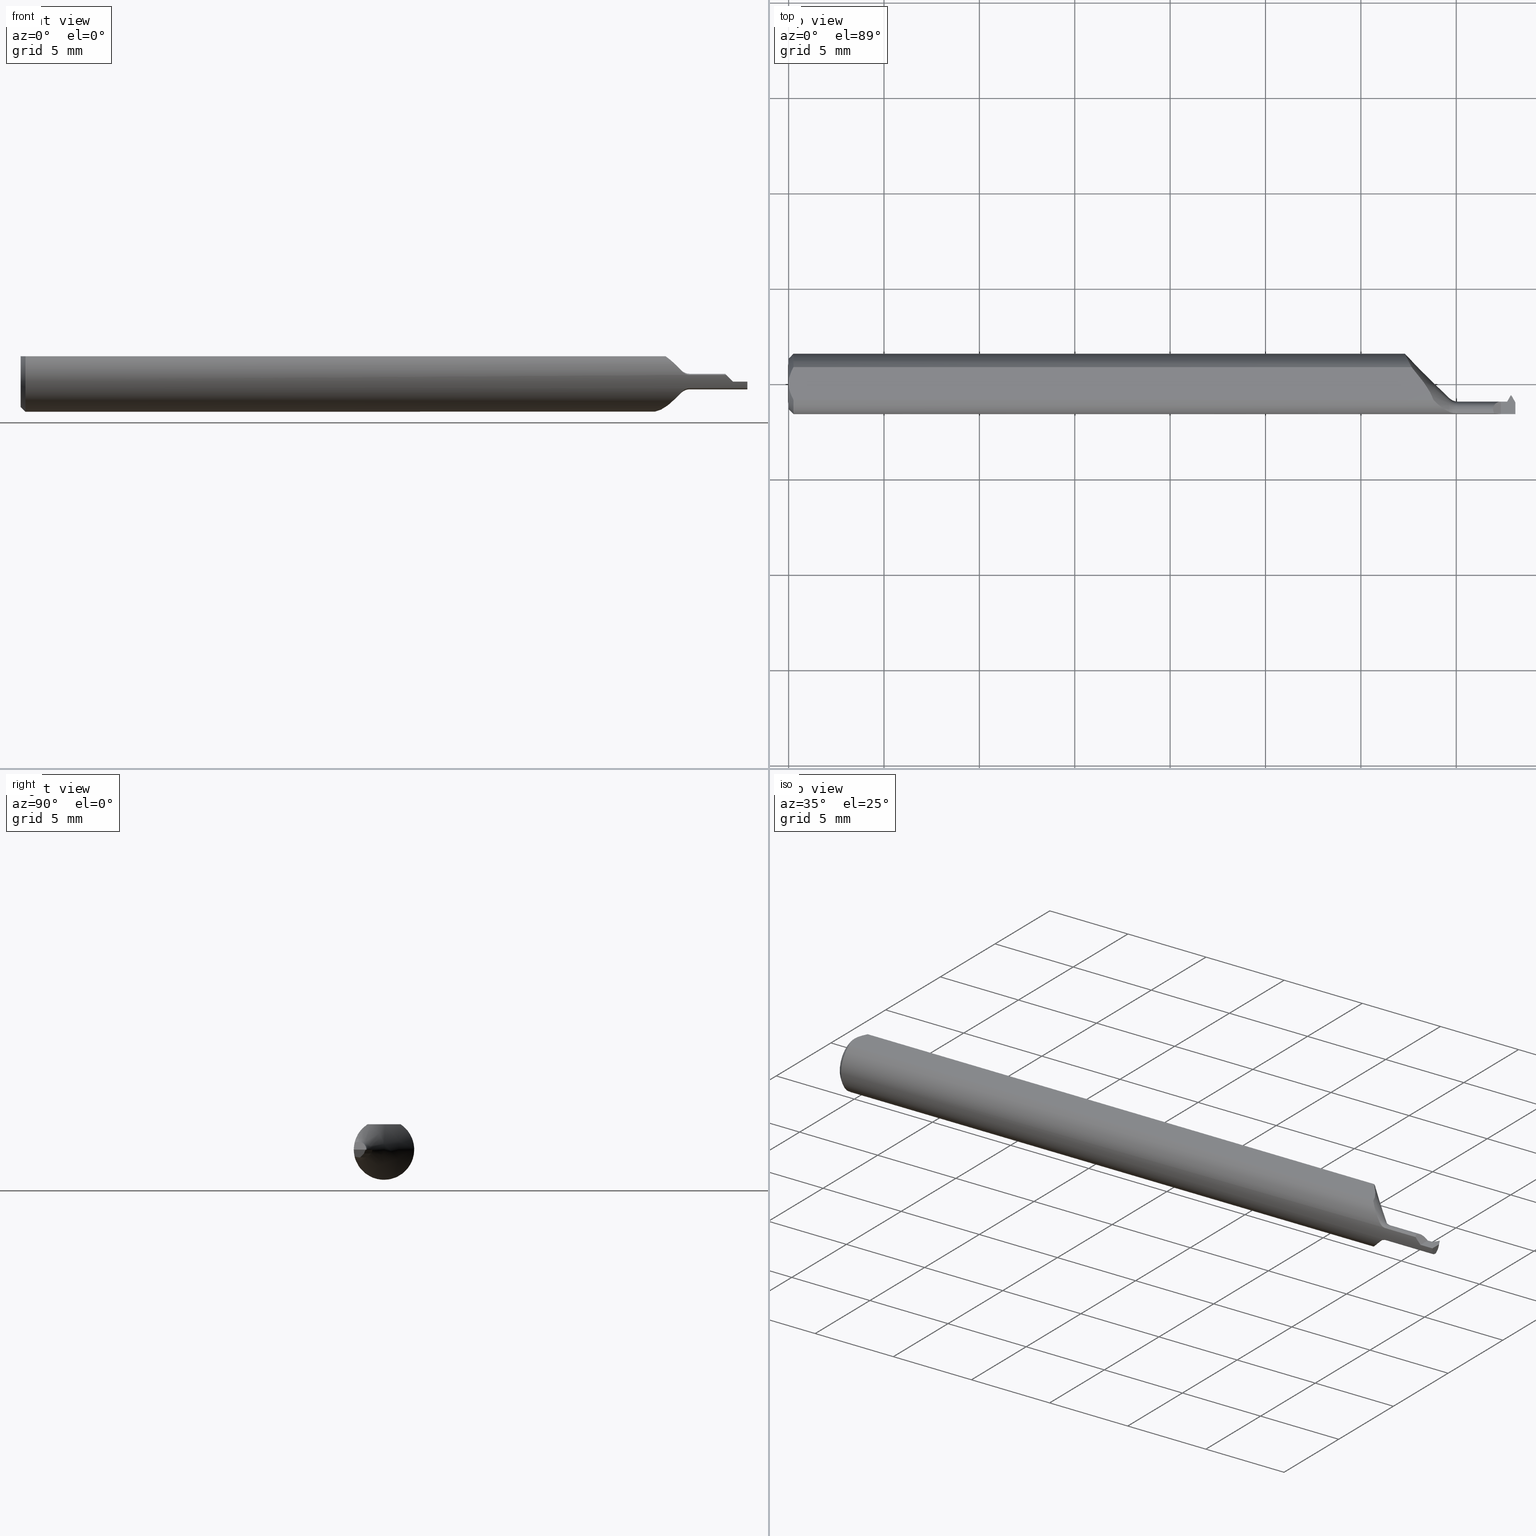
[diagram: canonical four-view strip — front | top / right | iso, engineering-drawing reading convention]
A machine part, canonical four-view strip (front | top / right | iso — engineering-drawing reading convention). The complete STEP part file that produces these views, byte-faithful:
ISO-10303-21;
HEADER;
FILE_DESCRIPTION (( 'STEP AP203' ),
    '1' );
FILE_NAME ('230004-TT040100.STEP',
    '2025-04-28T22:43:16',
    ( '' ),
    ( '' ),
    'SwSTEP 2.0',
    'SolidWorks 2024',
    '' );
FILE_SCHEMA (( 'CONFIG_CONTROL_DESIGN' ));
ENDSEC;

DATA;
#1 = EDGE_CURVE ( 'NONE', #303, #577, #497, .T. ) ;
#2 = CARTESIAN_POINT ( 'NONE',  ( 1.485166328632314237, -0.05235000000000001458, -0.01599999999999997952 ) ) ;
#3 = CIRCLE ( 'NONE', #788, 0.01599999999999988237 ) ;
#4 = DIRECTION ( 'NONE',  ( -1.000000000000000000, -0.000000000000000000, -0.000000000000000000 ) ) ;
#5 = EDGE_LOOP ( 'NONE', ( #852, #610, #675, #565 ) ) ;
#6 = DIRECTION ( 'NONE',  ( -1.000000000000000000, -0.000000000000000000, -0.000000000000000000 ) ) ;
#7 = LINE ( 'NONE', #446, #410 ) ;
#8 = VECTOR ( 'NONE', #378, 39.37007874015748143 ) ;
#9 = EDGE_CURVE ( 'NONE', #528, #49, #93, .T. ) ;
#10 = LINE ( 'NONE', #312, #833 ) ;
#11 = ORIENTED_EDGE ( 'NONE', *, *, #762, .F. ) ;
#12 = DIRECTION ( 'NONE',  ( 1.000000000000000000, 0.000000000000000000, -0.000000000000000000 ) ) ;
#13 = LINE ( 'NONE', #316, #800 ) ;
#14 = VERTEX_POINT ( 'NONE', #186 ) ;
#15 = CC_DESIGN_DATE_AND_TIME_ASSIGNMENT ( #763, #904, ( #403 ) ) ;
#16 = CARTESIAN_POINT ( 'NONE',  ( 1.381000000000000005, -0.06086002865329514372, -0.01354914802930767478 ) ) ;
#17 = DIRECTION ( 'NONE',  ( -0.001540819590687370240, 0.3746061487342010055, 0.9271827539409469576 ) ) ;
#18 = CARTESIAN_POINT ( 'NONE',  ( 0.009999999999999887451, 0.000000000000000000, -0.06235000000000000264 ) ) ;
#19 = VERTEX_POINT ( 'NONE', #42 ) ;
#20 = CC_DESIGN_PERSON_AND_ORGANIZATION_ASSIGNMENT ( #629, #414, ( #403 ) ) ;
#21 = CARTESIAN_POINT ( 'NONE',  ( 1.273920643488890780, 0.05804728439778031324, -0.02331046180152182914 ) ) ;
#22 = CARTESIAN_POINT ( 'NONE',  ( 1.325903638438954646, -0.02116583655497123601, 0.05234999999999997988 ) ) ;
#23 = DIRECTION ( 'NONE',  ( 0.000000000000000000, 0.3768974211598614676, 0.9262550048032377470 ) ) ;
#24 = VECTOR ( 'NONE', #549, 39.37007874015748854 ) ;
#25 =( BOUNDED_CURVE ( )  B_SPLINE_CURVE ( 3, ( #445, #822, #304, #89 ),
 .UNSPECIFIED., .F., .F. ) 
 B_SPLINE_CURVE_WITH_KNOTS ( ( 4, 4 ),
 ( 4.712388980384689674, 4.931444599950887131 ),
 .UNSPECIFIED. ) 
 CURVE ( )  GEOMETRIC_REPRESENTATION_ITEM ( )  RATIONAL_B_SPLINE_CURVE ( ( 1.000000000000000000, 0.9960052155909604465, 0.9960052155909604465, 1.000000000000000000 ) ) 
 REPRESENTATION_ITEM ( '' )  );
#26 = ORIENTED_EDGE ( 'NONE', *, *, #255, .F. ) ;
#27 = CARTESIAN_POINT ( 'NONE',  ( 1.483934152419251307, -0.03946995698028542277, -0.009492338584895693848 ) ) ;
#28 = CARTESIAN_POINT ( 'NONE',  ( 1.359844834378485023, -0.05656071896184830528, 0.02658338133628142946 ) ) ;
#29 = ORIENTED_EDGE ( 'NONE', *, *, #689, .T. ) ;
#30 = PERSON_AND_ORGANIZATION ( #252, #205 ) ;
#31 = CARTESIAN_POINT ( 'NONE',  ( 1.328966724932452825, -0.02737628946790733944, 0.05234999999999997294 ) ) ;
#32 = ADVANCED_FACE ( 'NONE', ( #338 ), #628, .T. ) ;
#33 = DIRECTION ( 'NONE',  ( -0.4999999999999923395, 0.8660254037844431485, 0.000000000000000000 ) ) ;
#34 = ORIENTED_EDGE ( 'NONE', *, *, #450, .T. ) ;
#35 = AXIS2_PLACEMENT_3D ( 'NONE', #289, #649, #789 ) ;
#36 = CALENDAR_DATE ( 2025, 28, 4 ) ;
#37 = ORIENTED_EDGE ( 'NONE', *, *, #325, .T. ) ;
#38 = CARTESIAN_POINT ( 'NONE',  ( 1.320447246675642283, -0.02178334940610882065, -0.05901081408407340273 ) ) ;
#39 = UNCERTAINTY_MEASURE_WITH_UNIT (LENGTH_MEASURE( 1.000000000000000082E-05 ), #751, 'distance_accuracy_value', 'NONE');
#40 = DIRECTION ( 'NONE',  ( 0.000000000000000000, 0.000000000000000000, 1.000000000000000000 ) ) ;
#41 = EDGE_CURVE ( 'NONE', #143, #396, #481, .T. ) ;
#42 = CARTESIAN_POINT ( 'NONE',  ( 1.363322330470336130, -0.05235000000000002152, 0.02332233047033637624 ) ) ;
#43 = APPROVAL_ROLE ( '' ) ;
#44 = ORIENTED_EDGE ( 'NONE', *, *, #268, .F. ) ;
#45 = EDGE_LOOP ( 'NONE', ( #346, #681 ) ) ;
#46 = EDGE_CURVE ( 'NONE', #515, #294, #510, .T. ) ;
#47 = ORIENTED_EDGE ( 'NONE', *, *, #755, .T. ) ;
#48 = DIRECTION ( 'NONE',  ( -1.000000000000000000, -0.000000000000000000, -0.000000000000000000 ) ) ;
#49 = VERTEX_POINT ( 'NONE', #709 ) ;
#50 = AXIS2_PLACEMENT_3D ( 'NONE', #601, #310, #516 ) ;
#51 = ORIENTED_EDGE ( 'NONE', *, *, #473, .T. ) ;
#52 = EDGE_CURVE ( 'NONE', #577, #303, #129, .T. ) ;
#53 = AXIS2_PLACEMENT_3D ( 'NONE', #576, #68, #211 ) ;
#54 = DIMENSIONAL_EXPONENTS ( 1.000000000000000000, 0.000000000000000000, 0.000000000000000000, 0.000000000000000000, 0.000000000000000000, 0.000000000000000000, 0.000000000000000000 ) ;
#55 = CARTESIAN_POINT ( 'NONE',  ( 1.363322330470336130, -0.05235000000000002152, -0.02332233047033637624 ) ) ;
#56 = CARTESIAN_POINT ( 'NONE',  ( 1.381000000000000005, -0.05235000000000001458, -0.01599999999999988237 ) ) ;
#57 = VERTEX_POINT ( 'NONE', #642 ) ;
#58 = CIRCLE ( 'NONE', #121, 0.02332233047033628950 ) ;
#59 = CARTESIAN_POINT ( 'NONE',  ( 1.363322330470336130, -0.05810997040527625390, 0.02259986370529518118 ) ) ;
#60 = DIRECTION ( 'NONE',  ( -0.1027016844787020933, 0.6087793493571465042, 0.7866638848971817533 ) ) ;
#61 = ORIENTED_EDGE ( 'NONE', *, *, #531, .F. ) ;
#62 = CARTESIAN_POINT ( 'NONE',  ( 1.483728791208669406, -0.03762192234469098617, -0.006251698055842509413 ) ) ;
#63 = ADVANCED_FACE ( 'NONE', ( #585 ), #721, .F. ) ;
#64 = FACE_OUTER_BOUND ( 'NONE', #778, .T. ) ;
#65 = EDGE_LOOP ( 'NONE', ( #893, #692, #937, #806 ) ) ;
#66 = AXIS2_PLACEMENT_3D ( 'NONE', #307, #4, #527 ) ;
#67 = CARTESIAN_POINT ( 'NONE',  ( 1.363322330470336352, -0.05235000000000001458, 0.000000000000000000 ) ) ;
#68 = DIRECTION ( 'NONE',  ( 0.7745966692414913979, 0.4472135954999534313, -0.4472135954999487684 ) ) ;
#69 = ADVANCED_FACE ( 'NONE', ( #64 ), #567, .F. ) ;
#70 = ORIENTED_EDGE ( 'NONE', *, *, #914, .T. ) ;
#71 = CIRCLE ( 'NONE', #262, 0.01599999999999994482 ) ;
#72 = DIRECTION ( 'NONE',  ( 1.000000000000000000, 0.000000000000000000, 0.000000000000000000 ) ) ;
#73 = FACE_OUTER_BOUND ( 'NONE', #568, .T. ) ;
#74 = ORIENTED_EDGE ( 'NONE', *, *, #667, .T. ) ;
#75 = EDGE_CURVE ( 'NONE', #810, #786, #571, .T. ) ;
#76 = FACE_OUTER_BOUND ( 'NONE', #878, .T. ) ;
#77 = CARTESIAN_POINT ( 'NONE',  ( 1.491486705364532428, -0.02658220980668124164, -0.008000000000000057412 ) ) ;
#78 = ORIENTED_EDGE ( 'NONE', *, *, #732, .F. ) ;
#79 =( NAMED_UNIT ( * ) SI_UNIT ( $, .STERADIAN. ) SOLID_ANGLE_UNIT ( ) );
#80 = ADVANCED_FACE ( 'NONE', ( #73 ), #206, .T. ) ;
#81 = CARTESIAN_POINT ( 'NONE',  ( 1.374127258983880440, -0.06064446188155016987, 0.01458464786448843663 ) ) ;
#82 = VECTOR ( 'NONE', #389, 39.37007874015748143 ) ;
#83 = LINE ( 'NONE', #594, #98 ) ;
#84 = ORIENTED_EDGE ( 'NONE', *, *, #651, .T. ) ;
#85 = DIRECTION ( 'NONE',  ( 1.000000000000000000, 0.000000000000000000, 0.000000000000000000 ) ) ;
#86 = CARTESIAN_POINT ( 'NONE',  ( 1.363322330470336352, -0.02335000000000000964, 1.673818705044219856E-17 ) ) ;
#87 = DIRECTION ( 'NONE',  ( 0.1120836188533455985, 0.000000000000000000, -0.9936987784961487380 ) ) ;
#88 = ORIENTED_EDGE ( 'NONE', *, *, #925, .T. ) ;
#89 = CARTESIAN_POINT ( 'NONE',  ( 1.456450851970692240, -0.06086002865329515066, 0.01354914802930776499 ) ) ;
#90 = DIRECTION ( 'NONE',  ( -1.000000000000000000, -0.000000000000000000, -0.000000000000000000 ) ) ;
#91 = LINE ( 'NONE', #666, #863 ) ;
#92 = EDGE_CURVE ( 'NONE', #857, #94, #491, .T. ) ;
#93 =( BOUNDED_CURVE ( )  B_SPLINE_CURVE ( 3, ( #192, #770, #113, #407 ),
 .UNSPECIFIED., .F., .F. ) 
 B_SPLINE_CURVE_WITH_KNOTS ( ( 4, 4 ),
 ( 5.722370004300532109, 6.283185307179586232 ),
 .UNSPECIFIED. ) 
 CURVE ( )  GEOMETRIC_REPRESENTATION_ITEM ( )  RATIONAL_B_SPLINE_CURVE ( ( 1.000000000000000000, 0.9739618011213222459, 0.9739618011213222459, 1.000000000000000000 ) ) 
 REPRESENTATION_ITEM ( '' )  );
#94 = VERTEX_POINT ( 'NONE', #127 ) ;
#95 = CARTESIAN_POINT ( 'NONE',  ( 1.273115893632432716, 0.05979447392878621537, -0.01839309767483820329 ) ) ;
#96 = CARTESIAN_POINT ( 'NONE',  ( 1.295285513869413485, 0.01635063848551787657, -0.06033004519805543892 ) ) ;
#97 = CARTESIAN_POINT ( 'NONE',  ( 1.381000000000000005, -0.06086002865329514372, 0.01354914802930767478 ) ) ;
#98 = VECTOR ( 'NONE', #244, 39.37007874015748143 ) ;
#99 = EDGE_LOOP ( 'NONE', ( #132, #402 ) ) ;
#100 = LINE ( 'NONE', #377, #575 ) ;
#101 = APPROVAL ( #472, 'UNSPECIFIED' ) ;
#102 = DIRECTION ( 'NONE',  ( 0.000000000000000000, -0.1993679344171976342, -0.9799247046208294787 ) ) ;
#103 = DIRECTION ( 'NONE',  ( 0.1955200734030771992, 0.1955200734030675958, 0.9610118635026907441 ) ) ;
#104 = AXIS2_PLACEMENT_3D ( 'NONE', #67, #420, #864 ) ;
#105 = VERTEX_POINT ( 'NONE', #56 ) ;
#106 = ADVANCED_FACE ( 'NONE', ( #731 ), #939, .T. ) ;
#107 = DIRECTION ( 'NONE',  ( 0.000000000000000000, -0.7071067811865435759, -0.7071067811865513475 ) ) ;
#108 = CARTESIAN_POINT ( 'NONE',  ( -1.104610997828796865E-15, -0.005965286321680308458, 0.05234999999999996600 ) ) ;
#109 = EDGE_LOOP ( 'NONE', ( #195, #328, #836, #945, #658, #162, #471, #869 ) ) ;
#110 = EDGE_CURVE ( 'NONE', #766, #810, #496, .T. ) ;
#111 = CARTESIAN_POINT ( 'NONE',  ( 1.339530206641906362, -0.04249308427292688983, -0.04632116021825222890 ) ) ;
#112 = CARTESIAN_POINT ( 'NONE',  ( 1.491486705364532206, -0.03458220980668111344, -0.01599999999999999686 ) ) ;
#113 = CARTESIAN_POINT ( 'NONE',  ( 1.453999999999999737, -0.05538089122830280181, 0.01599999999999994829 ) ) ;
#114 = CLOSED_SHELL ( 'NONE', ( #513, #542, #363, #895, #225, #600, #578, #674, #418, #630, #856, #622, #178, #207, #774, #487, #69, #861, #719, #147, #655, #547, #384, #63, #714, #32, #106, #80, #519 ) ) ;
#115 = DATE_AND_TIME ( #36, #554 ) ;
#116 = VECTOR ( 'NONE', #699, 39.37007874015748143 ) ;
#117 = CARTESIAN_POINT ( 'NONE',  ( 1.300398987895751590, 0.007676544554126420519, -0.06203328458329463585 ) ) ;
#118 = CARTESIAN_POINT ( 'NONE',  ( 1.363322330470336130, -0.05810997040527625390, 0.02259986370529518118 ) ) ;
#119 = EDGE_CURVE ( 'NONE', #348, #489, #679, .T. ) ;
#120 = CARTESIAN_POINT ( 'NONE',  ( 1.491000000000000103, 0.4617666623640707124, 0.4795058737510707325 ) ) ;
#121 = AXIS2_PLACEMENT_3D ( 'NONE', #243, #90, #596 ) ;
#122 = CALENDAR_DATE ( 2025, 28, 4 ) ;
#123 = CARTESIAN_POINT ( 'NONE',  ( 0.000000000000000000, 0.000000000000000000, 0.000000000000000000 ) ) ;
#124 = DIRECTION ( 'NONE',  ( 0.000000000000000000, 0.000000000000000000, 1.000000000000000000 ) ) ;
#125 = ORIENTED_EDGE ( 'NONE', *, *, #41, .F. ) ;
#126 = CARTESIAN_POINT ( 'NONE',  ( 1.271944660940673710, -0.05235000000000001458, 0.000000000000000000 ) ) ;
#127 = CARTESIAN_POINT ( 'NONE',  ( 1.500000000000000222, -0.06235000000000000264, 0.000000000000000000 ) ) ;
#128 = ORIENTED_EDGE ( 'NONE', *, *, #165, .F. ) ;
#129 = CIRCLE ( 'NONE', #924, 0.05235000000000033377 ) ;
#130 = DIRECTION ( 'NONE',  ( 0.000000000000000000, 0.000000000000000000, -1.000000000000000000 ) ) ;
#131 = CARTESIAN_POINT ( 'NONE',  ( 1.331127731721387430, -0.03386738844375222768, 0.05234999999999997294 ) ) ;
#132 = ORIENTED_EDGE ( 'NONE', *, *, #119, .T. ) ;
#133 = AXIS2_PLACEMENT_3D ( 'NONE', #459, #946, #296 ) ;
#134 = EDGE_CURVE ( 'NONE', #736, #776, #799, .T. ) ;
#135 = DIRECTION ( 'NONE',  ( -1.000000000000000000, -0.000000000000000000, -0.000000000000000000 ) ) ;
#136 = CARTESIAN_POINT ( 'NONE',  ( 1.482994446500534913, -0.03635000000000006976, 0.000000000000000000 ) ) ;
#137 = ORIENTED_EDGE ( 'NONE', *, *, #219, .T. ) ;
#138 = CC_DESIGN_PERSON_AND_ORGANIZATION_ASSIGNMENT ( #483, #688, ( #142 ) ) ;
#139 = CYLINDRICAL_SURFACE ( 'NONE', #104, 0.01599999999999994482 ) ;
#140 = CARTESIAN_POINT ( 'NONE',  ( 1.490500000000000158, -0.02334999999999999923, 0.000000000000000000 ) ) ;
#141 = LOCAL_TIME ( 15, 43, 16.00000000000000000, #329 ) ;
#142 = PRODUCT ( '230004-TT040100', '230004-TT040100', '', ( #701 ) ) ;
#143 = VERTEX_POINT ( 'NONE', #865 ) ;
#144 = AXIS2_PLACEMENT_3D ( 'NONE', #646, #351, #725 ) ;
#145 = FACE_OUTER_BOUND ( 'NONE', #201, .T. ) ;
#146 = DIRECTION ( 'NONE',  ( -1.000000000000000000, -0.000000000000000000, -0.000000000000000000 ) ) ;
#147 = ADVANCED_FACE ( 'NONE', ( #860 ), #193, .T. ) ;
#148 = EDGE_LOOP ( 'NONE', ( #754, #700, #125, #654, #290 ) ) ;
#149 = CIRCLE ( 'NONE', #682, 0.01599999999999988237 ) ;
#150 = PLANE ( 'NONE',  #715 ) ;
#151 = CARTESIAN_POINT ( 'NONE',  ( 1.359831570835741577, -0.05655480995082499268, -0.02659857489940051917 ) ) ;
#152 = EDGE_CURVE ( 'NONE', #786, #14, #792, .T. ) ;
#153 = ORIENTED_EDGE ( 'NONE', *, *, #219, .F. ) ;
#154 = DIRECTION ( 'NONE',  ( -1.000000000000000000, -0.000000000000000000, -0.000000000000000000 ) ) ;
#155 = DIRECTION ( 'NONE',  ( -1.000000000000000000, -0.000000000000000000, -0.000000000000000000 ) ) ;
#156 = ORIENTED_EDGE ( 'NONE', *, *, #379, .T. ) ;
#157 = LINE ( 'NONE', #900, #936 ) ;
#158 = CARTESIAN_POINT ( 'NONE',  ( 1.483934152419251307, -0.05235000000000001458, 0.000000000000000000 ) ) ;
#159 = VECTOR ( 'NONE', #653, 39.37007874015748854 ) ;
#160 = VECTOR ( 'NONE', #486, 39.37007874015748143 ) ;
#161 = CARTESIAN_POINT ( 'NONE',  ( 1.381000000000000005, -0.05235000000000001458, 0.01599999999999988237 ) ) ;
#162 = ORIENTED_EDGE ( 'NONE', *, *, #726, .F. ) ;
#163 = CARTESIAN_POINT ( 'NONE',  ( 1.470000000000000195, -0.03635000000000006976, 1.673818705044219856E-17 ) ) ;
#164 = AXIS2_PLACEMENT_3D ( 'NONE', #126, #855, #716 ) ;
#165 = EDGE_CURVE ( 'NONE', #515, #840, #215, .T. ) ;
#166 = DIRECTION ( 'NONE',  ( 0.1993679344171976064, 0.000000000000000000, 0.9799247046208294787 ) ) ;
#167 = LINE ( 'NONE', #672, #696 ) ;
#168 = ORIENTED_EDGE ( 'NONE', *, *, #279, .T. ) ;
#169 = CARTESIAN_POINT ( 'NONE',  ( 1.431542465457123825, -0.06086002865329513678, 0.01354914802930775632 ) ) ;
#170 = DIRECTION ( 'NONE',  ( -0.9799247046208295897, 0.000000000000000000, 0.1993679344171976342 ) ) ;
#171 = CARTESIAN_POINT ( 'NONE',  ( 1.479813008569486499, -0.03762192234476072206, -0.006251698055827641098 ) ) ;
#172 = ORIENTED_EDGE ( 'NONE', *, *, #423, .T. ) ;
#173 = LINE ( 'NONE', #169, #524 ) ;
#174 = CARTESIAN_POINT ( 'NONE',  ( 1.331127731721387430, -0.03386738844375222768, 0.05234999999999997294 ) ) ;
#175 = DIRECTION ( 'NONE',  ( 0.000000000000000000, -0.7071067811865437980, -0.7071067811865511255 ) ) ;
#176 = AXIS2_PLACEMENT_3D ( 'NONE', #488, #781, #124 ) ;
#177 = ORIENTED_EDGE ( 'NONE', *, *, #684, .T. ) ;
#178 = ADVANCED_FACE ( 'NONE', ( #293 ), #795, .F. ) ;
#179 = PERSON_AND_ORGANIZATION ( #252, #205 ) ;
#180 = LINE ( 'NONE', #843, #544 ) ;
#181 = CARTESIAN_POINT ( 'NONE',  ( 0.001055043921632921322, -0.01186408073210964975, 0.05234999999999997988 ) ) ;
#182 = AXIS2_PLACEMENT_3D ( 'NONE', #823, #526, #808 ) ;
#183 = ORIENTED_EDGE ( 'NONE', *, *, #870, .T. ) ;
#184 = FACE_OUTER_BOUND ( 'NONE', #109, .T. ) ;
#185 = LINE ( 'NONE', #769, #116 ) ;
#186 = CARTESIAN_POINT ( 'NONE',  ( 1.483728791208669406, -0.03762192234469098617, -0.006251698055842509413 ) ) ;
#187 = APPROVAL_STATUS ( 'not_yet_approved' ) ;
#188 =( BOUNDED_CURVE ( )  B_SPLINE_CURVE ( 3, ( #382, #322, #609, #302 ),
 .UNSPECIFIED., .F., .F. ) 
 B_SPLINE_CURVE_WITH_KNOTS ( ( 4, 4 ),
 ( 2.991310816743377288, 3.291874490436208500 ),
 .UNSPECIFIED. ) 
 CURVE ( )  GEOMETRIC_REPRESENTATION_ITEM ( )  RATIONAL_B_SPLINE_CURVE ( ( 1.000000000000000000, 0.9924859476630489841, 0.9924859476630489841, 1.000000000000000000 ) ) 
 REPRESENTATION_ITEM ( '' )  );
#189 = VERTEX_POINT ( 'NONE', #432 ) ;
#190 = CARTESIAN_POINT ( 'NONE',  ( 1.483934152419251307, -0.03797761839540131357, -0.008000000000012214355 ) ) ;
#191 = DIRECTION ( 'NONE',  ( -0.4999999999999965583, 0.8660254037844404840, -1.003110032094775956E-14 ) ) ;
#192 = CARTESIAN_POINT ( 'NONE',  ( 1.456450851970692240, -0.06086002865329515066, 0.01354914802930776499 ) ) ;
#193 = CONICAL_SURFACE ( 'NONE', #35, 0.05235000000000033377, 0.7853981633974376209 ) ;
#194 = DATE_TIME_ROLE ( 'creation_date' ) ;
#195 = ORIENTED_EDGE ( 'NONE', *, *, #684, .F. ) ;
#196 = VECTOR ( 'NONE', #191, 39.37007874015748854 ) ;
#197 = CC_DESIGN_PERSON_AND_ORGANIZATION_ASSIGNMENT ( #179, #467, ( #693 ) ) ;
#198 = DIRECTION ( 'NONE',  ( 1.000000000000000000, 0.000000000000000000, 0.000000000000000000 ) ) ;
#199 = DIRECTION ( 'NONE',  ( 1.000000000000000000, 0.000000000000000000, 0.000000000000000000 ) ) ;
#200 = AXIS2_PLACEMENT_3D ( 'NONE', #517, #469, #102 ) ;
#201 = EDGE_LOOP ( 'NONE', ( #586, #564, #573, #208 ) ) ;
#202 = FACE_OUTER_BOUND ( 'NONE', #663, .T. ) ;
#203 = DIRECTION ( 'NONE',  ( -1.000000000000000000, -0.000000000000000000, -0.000000000000000000 ) ) ;
#204 = CARTESIAN_POINT ( 'NONE',  ( 1.484475546333879015, -0.04020875798010495328, -0.01234590090736572415 ) ) ;
#205 = ORGANIZATION ( 'UNSPECIFIED', 'UNSPECIFIED', '' ) ;
#206 = PLANE ( 'NONE',  #359 ) ;
#207 = ADVANCED_FACE ( 'NONE', ( #872 ), #221, .F. ) ;
#208 = ORIENTED_EDGE ( 'NONE', *, *, #930, .T. ) ;
#209 = VECTOR ( 'NONE', #284, 39.37007874015748143 ) ;
#210 = FACE_BOUND ( 'NONE', #484, .T. ) ;
#211 = DIRECTION ( 'NONE',  ( -0.4999999999999923395, 0.8660254037844431485, 0.000000000000000000 ) ) ;
#212 = EDGE_LOOP ( 'NONE', ( #538, #309, #821, #858, #917, #640 ) ) ;
#213 = EDGE_CURVE ( 'NONE', #396, #713, #10, .T. ) ;
#214 = FACE_OUTER_BOUND ( 'NONE', #643, .T. ) ;
#215 = LINE ( 'NONE', #428, #557 ) ;
#216 = ORIENTED_EDGE ( 'NONE', *, *, #295, .T. ) ;
#217 = ADVANCED_BREP_SHAPE_REPRESENTATION ( '230004-TT040100', ( #336, #616 ), #283 ) ;
#218 = APPLICATION_CONTEXT ( 'configuration controlled 3d designs of mechanical parts and assemblies' ) ;
#219 = EDGE_CURVE ( 'NONE', #577, #417, #436, .T. ) ;
#220 = FACE_OUTER_BOUND ( 'NONE', #462, .T. ) ;
#221 = PLANE ( 'NONE',  #677 ) ;
#222 = VERTEX_POINT ( 'NONE', #161 ) ;
#223 = VECTOR ( 'NONE', #437, 39.37007874015748143 ) ;
#224 = FACE_OUTER_BOUND ( 'NONE', #99, .T. ) ;
#225 = ADVANCED_FACE ( 'NONE', ( #805 ), #892, .T. ) ;
#226 = LINE ( 'NONE', #809, #388 ) ;
#227 = ORIENTED_EDGE ( 'NONE', *, *, #134, .F. ) ;
#228 = FACE_OUTER_BOUND ( 'NONE', #873, .T. ) ;
#229 = PLANE ( 'NONE',  #200 ) ;
#230 = DIRECTION ( 'NONE',  ( -0.7071067811865425767, 0.000000000000000000, 0.7071067811865524577 ) ) ;
#231 = ORIENTED_EDGE ( 'NONE', *, *, #473, .F. ) ;
#232 = CARTESIAN_POINT ( 'NONE',  ( 1.281611693946026698, 0.04189604565662205515, 0.04715592831881575825 ) ) ;
#233 = FACE_OUTER_BOUND ( 'NONE', #541, .T. ) ;
#234 = CARTESIAN_POINT ( 'NONE',  ( -1.133440131013889109E-15, 0.005954997531774002505, 0.05234999999999997294 ) ) ;
#235 = ORIENTED_EDGE ( 'NONE', *, *, #52, .T. ) ;
#236 = EDGE_CURVE ( 'NONE', #294, #840, #415, .T. ) ;
#237 = CARTESIAN_POINT ( 'NONE',  ( 1.481084930914247089, -0.03634999999999997261, 0.000000000000000000 ) ) ;
#238 = CARTESIAN_POINT ( 'NONE',  ( 1.363322330470336130, -0.05810997040527625390, -0.02259986370529518118 ) ) ;
#239 = ORIENTED_EDGE ( 'NONE', *, *, #92, .T. ) ;
#240 = CARTESIAN_POINT ( 'NONE',  ( 1.363322330470336130, -0.05810997040527625390, -0.02259986370529518118 ) ) ;
#241 = CC_DESIGN_DATE_AND_TIME_ASSIGNMENT ( #841, #194, ( #918 ) ) ;
#242 = VECTOR ( 'NONE', #17, 39.37007874015748143 ) ;
#243 = CARTESIAN_POINT ( 'NONE',  ( 1.363322330470336130, -0.05235000000000001458, 0.000000000000000000 ) ) ;
#244 = DIRECTION ( 'NONE',  ( -1.000000000000000000, -0.000000000000000000, -0.000000000000000000 ) ) ;
#245 = VERTEX_POINT ( 'NONE', #77 ) ;
#246 = B_SPLINE_CURVE_WITH_KNOTS ( 'NONE', 3,
 ( #474, #264, #111, #404, #38, #625, #479, #773, #117, #96, #387, #318, #386, #676, #812, #21, #95, #817, #894, #827, #607, #885, #232, #463 ),
 .UNSPECIFIED., .F., .F.,
 ( 4, 2, 2, 2, 2, 2, 2, 2, 2, 2, 2, 4 ),
 ( 0.0004181303876200363930, 0.001201417384251923445, 0.001984704380883810931, 0.002376347879199748169, 0.002767991377515685407, 0.003159634875831623078, 0.003551278374147560750, 0.004334565370779443899, 0.004726208869095386775, 0.005117852367411327916, 0.005901139364043211932, 0.006684426360675095949 ),
 .UNSPECIFIED. ) ;
#247 = DIRECTION ( 'NONE',  ( 1.000000000000000000, 0.000000000000000000, 0.000000000000000000 ) ) ;
#248 = EDGE_CURVE ( 'NONE', #14, #426, #597, .T. ) ;
#249 = LINE ( 'NONE', #537, #698 ) ;
#250 = VERTEX_POINT ( 'NONE', #452 ) ;
#251 = SHAPE_DEFINITION_REPRESENTATION ( #314, #217 ) ;
#252 = PERSON ( 'UNSPECIFIED', 'UNSPECIFIED', 'UNSPECIFIED', ('UNSPECIFIED'), ('UNSPECIFIED'), ('UNSPECIFIED') ) ;
#253 = CARTESIAN_POINT ( 'NONE',  ( 1.381000000000000005, -0.05235000000000001458, -0.04100000000000000172 ) ) ;
#254 = DIRECTION ( 'NONE',  ( 0.000000000000000000, 0.000000000000000000, 1.000000000000000000 ) ) ;
#255 = EDGE_CURVE ( 'NONE', #344, #857, #380, .T. ) ;
#256 = ORIENTED_EDGE ( 'NONE', *, *, #236, .T. ) ;
#257 = COORDINATED_UNIVERSAL_TIME_OFFSET ( 8, 0, .BEHIND. ) ;
#258 =( BOUNDED_CURVE ( )  B_SPLINE_CURVE ( 3, ( #859, #356, #204, #62 ),
 .UNSPECIFIED., .F., .F. ) 
 B_SPLINE_CURVE_WITH_KNOTS ( ( 4, 4 ),
 ( 3.342305517569141404, 4.511676116406238002 ),
 .UNSPECIFIED. ) 
 CURVE ( )  GEOMETRIC_REPRESENTATION_ITEM ( )  RATIONAL_B_SPLINE_CURVE ( ( 1.000000000000000000, 0.8892572147112806080, 0.8892572147112806080, 1.000000000000000000 ) ) 
 REPRESENTATION_ITEM ( '' )  );
#259 = ORIENTED_EDGE ( 'NONE', *, *, #555, .F. ) ;
#260 = CARTESIAN_POINT ( 'NONE',  ( 1.381000000000000005, -0.05235000000000001458, 0.000000000000000000 ) ) ;
#261 = DIRECTION ( 'NONE',  ( -1.000000000000000000, -0.000000000000000000, -0.000000000000000000 ) ) ;
#262 = AXIS2_PLACEMENT_3D ( 'NONE', #158, #665, #315 ) ;
#263 = DIRECTION ( 'NONE',  ( 0.000000000000000000, 0.000000000000000000, -1.000000000000000000 ) ) ;
#264 = CARTESIAN_POINT ( 'NONE',  ( 1.346165295145469232, -0.04807243733824484444, -0.04047936579520317046 ) ) ;
#265 = CYLINDRICAL_SURFACE ( 'NONE', #659, 0.01599999999999994482 ) ;
#266 = ORIENTED_EDGE ( 'NONE', *, *, #291, .T. ) ;
#267 = COORDINATED_UNIVERSAL_TIME_OFFSET ( 8, 0, .BEHIND. ) ;
#268 = EDGE_CURVE ( 'NONE', #19, #776, #91, .T. ) ;
#269 = CC_DESIGN_APPROVAL ( #101, ( #403 ) ) ;
#270 = CARTESIAN_POINT ( 'NONE',  ( 1.381000000000000005, -0.05235000000000002152, 0.000000000000000000 ) ) ;
#271 = EDGE_LOOP ( 'NONE', ( #505, #439, #177, #509 ) ) ;
#272 = AXIS2_PLACEMENT_3D ( 'NONE', #705, #199, #927 ) ;
#273 = APPROVAL_ROLE ( '' ) ;
#274 = ORIENTED_EDGE ( 'NONE', *, *, #930, .F. ) ;
#275 = CARTESIAN_POINT ( 'NONE',  ( 1.491496458899076449, -0.02421091725938376640, -0.002130844990579961167 ) ) ;
#276 = ORIENTED_EDGE ( 'NONE', *, *, #456, .T. ) ;
#277 = AXIS2_PLACEMENT_3D ( 'NONE', #321, #619, #608 ) ;
#278 = LINE ( 'NONE', #794, #703 ) ;
#279 = EDGE_CURVE ( 'NONE', #433, #245, #13, .T. ) ;
#280 = CARTESIAN_POINT ( 'NONE',  ( 1.352777272496920480, -0.05235000000000001458, 0.03386738844375219298 ) ) ;
#281 = VERTEX_POINT ( 'NONE', #749 ) ;
#282 = CARTESIAN_POINT ( 'NONE',  ( 1.490513294635467778, -0.02658220980668096062, -0.007999999999999883940 ) ) ;
#283 =( GEOMETRIC_REPRESENTATION_CONTEXT ( 3 ) GLOBAL_UNCERTAINTY_ASSIGNED_CONTEXT ( ( #39 ) ) GLOBAL_UNIT_ASSIGNED_CONTEXT ( ( #751, #392, #79 ) ) REPRESENTATION_CONTEXT ( 'NONE', 'WORKASPACE' ) );
#284 = DIRECTION ( 'NONE',  ( 0.000000000000000000, -1.000000000000000000, 0.000000000000000000 ) ) ;
#285 = ORIENTED_EDGE ( 'NONE', *, *, #165, .T. ) ;
#286 = CIRCLE ( 'NONE', #645, 0.02500000000000011588 ) ;
#287 = VECTOR ( 'NONE', #103, 39.37007874015748854 ) ;
#288 = PLANE ( 'NONE',  #438 ) ;
#289 = CARTESIAN_POINT ( 'NONE',  ( 0.000000000000000000, 0.000000000000000000, 0.000000000000000000 ) ) ;
#290 = ORIENTED_EDGE ( 'NONE', *, *, #830, .F. ) ;
#291 = EDGE_CURVE ( 'NONE', #922, #831, #188, .T. ) ;
#292 = DIRECTION ( 'NONE',  ( 0.7071067811865550112, 0.000000000000000000, -0.7071067811865400232 ) ) ;
#293 = FACE_OUTER_BOUND ( 'NONE', #498, .T. ) ;
#294 = VERTEX_POINT ( 'NONE', #238 ) ;
#295 = EDGE_CURVE ( 'NONE', #143, #94, #406, .T. ) ;
#296 = DIRECTION ( 'NONE',  ( 0.000000000000000000, 0.000000000000000000, -1.000000000000000000 ) ) ;
#297 = DIRECTION ( 'NONE',  ( 0.000000000000000000, 0.000000000000000000, -1.000000000000000000 ) ) ;
#298 = ORIENTED_EDGE ( 'NONE', *, *, #870, .F. ) ;
#299 =( LENGTH_UNIT ( ) NAMED_UNIT ( * ) SI_UNIT ( $, .METRE. ) );
#300 = VECTOR ( 'NONE', #375, 39.37007874015748854 ) ;
#301 = DIRECTION ( 'NONE',  ( 1.000000000000000000, 0.000000000000000000, 0.000000000000000000 ) ) ;
#302 = CARTESIAN_POINT ( 'NONE',  ( 1.483934152419251307, -0.03946995698028542277, -0.009492338584895693848 ) ) ;
#303 = VERTEX_POINT ( 'NONE', #518 ) ;
#304 = CARTESIAN_POINT ( 'NONE',  ( 1.460903670666237053, -0.06185135088873648657, 0.009096329333762876931 ) ) ;
#305 = AXIS2_PLACEMENT_3D ( 'NONE', #253, #764, #834 ) ;
#306 = DIRECTION ( 'NONE',  ( -1.000000000000000000, -0.000000000000000000, -0.000000000000000000 ) ) ;
#307 = CARTESIAN_POINT ( 'NONE',  ( 1.500000000000000222, 0.000000000000000000, 0.000000000000000000 ) ) ;
#308 = EDGE_CURVE ( 'NONE', #57, #810, #226, .T. ) ;
#309 = ORIENTED_EDGE ( 'NONE', *, *, #213, .F. ) ;
#310 = DIRECTION ( 'NONE',  ( -1.000000000000000000, -0.000000000000000000, -0.000000000000000000 ) ) ;
#311 = CARTESIAN_POINT ( 'NONE',  ( 1.490496461273201900, -0.02248965994110998026, 0.002129416369226141709 ) ) ;
#312 = CARTESIAN_POINT ( 'NONE',  ( 1.500000000000000222, 0.000000000000000000, -0.01600000000000001421 ) ) ;
#313 = ORIENTED_EDGE ( 'NONE', *, *, #450, .F. ) ;
#314 = PRODUCT_DEFINITION_SHAPE ( 'NONE', 'NONE',  #918 ) ;
#315 = DIRECTION ( 'NONE',  ( 0.000000000000000000, -3.734948428837872167E-15, -1.000000000000000000 ) ) ;
#316 = CARTESIAN_POINT ( 'NONE',  ( 1.491486705364532206, -0.02658220980668139777, -0.008000000000000197925 ) ) ;
#317 = ORIENTED_EDGE ( 'NONE', *, *, #842, .T. ) ;
#318 = CARTESIAN_POINT ( 'NONE',  ( 1.288243343854815759, 0.02912554256526329530, -0.05532257426885173884 ) ) ;
#319 = EDGE_CURVE ( 'NONE', #143, #189, #167, .T. ) ;
#320 = AXIS2_PLACEMENT_3D ( 'NONE', #710, #72, #130 ) ;
#321 = CARTESIAN_POINT ( 'NONE',  ( 1.500000000000000222, -0.2500000000000000555, 0.000000000000000000 ) ) ;
#322 = CARTESIAN_POINT ( 'NONE',  ( 1.484130850350364961, -0.04156235588322571700, -0.01192542829826835453 ) ) ;
#323 = EDGE_LOOP ( 'NONE', ( #156, #168, #231, #443 ) ) ;
#324 = CARTESIAN_POINT ( 'NONE',  ( 0.000000000000000000, 0.000000000000000000, 0.000000000000000000 ) ) ;
#325 = EDGE_CURVE ( 'NONE', #19, #222, #286, .T. ) ;
#326 = CARTESIAN_POINT ( 'NONE',  ( 1.315224182788650387, -0.003615021247189844494, 0.05234999999999997294 ) ) ;
#327 = CARTESIAN_POINT ( 'NONE',  ( 1.352777272496920480, -0.05235000000000001458, 0.03386738844375219298 ) ) ;
#328 = ORIENTED_EDGE ( 'NONE', *, *, #914, .F. ) ;
#329 = COORDINATED_UNIVERSAL_TIME_OFFSET ( 8, 0, .BEHIND. ) ;
#330 = CARTESIAN_POINT ( 'NONE',  ( 1.500000000000000222, -0.03807243186433599547, 0.000000000000000000 ) ) ;
#331 = DIRECTION ( 'NONE',  ( -1.000000000000000000, -0.000000000000000000, -0.000000000000000000 ) ) ;
#332 = AXIS2_PLACEMENT_3D ( 'NONE', #140, #947, #579 ) ;
#333 = CARTESIAN_POINT ( 'NONE',  ( 0.000000000000000000, 0.000000000000000000, 0.000000000000000000 ) ) ;
#334 = PERSON_AND_ORGANIZATION ( #252, #205 ) ;
#335 = PLANE ( 'NONE',  #662 ) ;
#336 = MANIFOLD_SOLID_BREP ( 'Cut-Sweep1', #114 ) ;
#337 = LINE ( 'NONE', #921, #160 ) ;
#338 = FACE_OUTER_BOUND ( 'NONE', #476, .T. ) ;
#339 = PERSON_AND_ORGANIZATION_ROLE ( 'creator' ) ;
#340 = ORIENTED_EDGE ( 'NONE', *, *, #689, .F. ) ;
#341 = DIRECTION ( 'NONE',  ( -1.000000000000000000, -0.000000000000000000, -0.000000000000000000 ) ) ;
#342 = VERTEX_POINT ( 'NONE', #18 ) ;
#343 = EDGE_CURVE ( 'NONE', #766, #105, #83, .T. ) ;
#344 = VERTEX_POINT ( 'NONE', #533 ) ;
#345 = CARTESIAN_POINT ( 'NONE',  ( 1.481084930914247089, -0.03634999999999997261, 0.000000000000000000 ) ) ;
#346 = ORIENTED_EDGE ( 'NONE', *, *, #785, .T. ) ;
#347 = VECTOR ( 'NONE', #33, 39.37007874015748854 ) ;
#348 = VERTEX_POINT ( 'NONE', #171 ) ;
#349 = EDGE_CURVE ( 'NONE', #525, #245, #460, .T. ) ;
#350 = CARTESIAN_POINT ( 'NONE',  ( 1.456450851970692240, -0.06086002865329515066, 0.01354914802930776499 ) ) ;
#351 = DIRECTION ( 'NONE',  ( 0.000000000000000000, -0.9271838545667897558, 0.3746065934159062971 ) ) ;
#352 = AXIS2_PLACEMENT_3D ( 'NONE', #532, #301, #814 ) ;
#353 = ORIENTED_EDGE ( 'NONE', *, *, #236, .F. ) ;
#354 = DIRECTION ( 'NONE',  ( -1.000000000000000000, -0.000000000000000000, -0.000000000000000000 ) ) ;
#355 = ORIENTED_EDGE ( 'NONE', *, *, #502, .T. ) ;
#356 = CARTESIAN_POINT ( 'NONE',  ( 1.485014399584983380, -0.04572949949020763821, -0.01599999999999994482 ) ) ;
#357 = DIRECTION ( 'NONE',  ( -0.4999999999999854006, -0.8660254037844470343, 0.000000000000000000 ) ) ;
#358 = VERTEX_POINT ( 'NONE', #97 ) ;
#359 = AXIS2_PLACEMENT_3D ( 'NONE', #366, #425, #357 ) ;
#360 = DIRECTION ( 'NONE',  ( -0.8486396879976035867, -0.4899623523104097989, 0.1993679344171976342 ) ) ;
#361 = CARTESIAN_POINT ( 'NONE',  ( 1.480216676601453285, -0.03677972535723927211, -0.004267606290285334142 ) ) ;
#362 = CONICAL_SURFACE ( 'NONE', #164, 0.1147000000000000103, 0.7853981633974552734 ) ;
#363 = ADVANCED_FACE ( 'NONE', ( #680 ), #635, .F. ) ;
#364 = EDGE_LOOP ( 'NONE', ( #128, #551, #256 ) ) ;
#365 = CARTESIAN_POINT ( 'NONE',  ( 1.453999999999999737, -0.04297741699796956555, 0.01599999999999994829 ) ) ;
#366 = CARTESIAN_POINT ( 'NONE',  ( 1.491000000000000103, 0.4617666623640707124, 0.4795058737510707325 ) ) ;
#367 = ORIENTED_EDGE ( 'NONE', *, *, #613, .T. ) ;
#368 = B_SPLINE_CURVE_WITH_KNOTS ( 'NONE', 3,
 ( #540, #902, #546, #181, #108, #614 ),
 .UNSPECIFIED., .F., .F.,
 ( 4, 2, 4 ),
 ( 0.002189598257423874383, 0.002641492532680540361, 0.003093386807937206339 ),
 .UNSPECIFIED. ) ;
#369 = CARTESIAN_POINT ( 'NONE',  ( 1.490513294635467778, -0.02658220980668097796, -0.007999999999999774652 ) ) ;
#370 = DIRECTION ( 'NONE',  ( 1.872381886318317841E-16, 0.7071067811865435759, 0.7071067811865513475 ) ) ;
#371 = EDGE_LOOP ( 'NONE', ( #61, #419, #137, #313 ) ) ;
#372 = VECTOR ( 'NONE', #835, 39.37007874015748854 ) ;
#373 = EDGE_CURVE ( 'NONE', #776, #560, #671, .T. ) ;
#374 = CARTESIAN_POINT ( 'NONE',  ( 1.500000000000000222, -0.04932766865511525184, -0.01599999999999999686 ) ) ;
#375 = DIRECTION ( 'NONE',  ( -0.1143501000964186193, 0.1980601832175949151, 0.9734969021171826498 ) ) ;
#376 = ORIENTED_EDGE ( 'NONE', *, *, #343, .T. ) ;
#377 = CARTESIAN_POINT ( 'NONE',  ( -3.937007874047004035E-05, -0.03458220980668112732, -0.01600000000000001421 ) ) ;
#378 = DIRECTION ( 'NONE',  ( -1.000000000000000000, -0.000000000000000000, -0.000000000000000000 ) ) ;
#379 = EDGE_CURVE ( 'NONE', #713, #433, #780, .T. ) ;
#380 = LINE ( 'NONE', #457, #434 ) ;
#381 = ORIENTED_EDGE ( 'NONE', *, *, #940, .F. ) ;
#382 = CARTESIAN_POINT ( 'NONE',  ( 1.483934152419251307, -0.04285766141510419236, -0.01288004301971449467 ) ) ;
#383 = ORIENTED_EDGE ( 'NONE', *, *, #291, .F. ) ;
#384 = ADVANCED_FACE ( 'NONE', ( #844 ), #587, .T. ) ;
#385 = CC_DESIGN_SECURITY_CLASSIFICATION ( #403, ( #693 ) ) ;
#386 = CARTESIAN_POINT ( 'NONE',  ( 1.286084177620281821, 0.03324347811187151197, -0.05295995383883918967 ) ) ;
#387 = CARTESIAN_POINT ( 'NONE',  ( 1.292860658073492042, 0.02065008878837636813, -0.05901235706600572312 ) ) ;
#388 = VECTOR ( 'NONE', #819, 39.37007874015748143 ) ;
#389 = DIRECTION ( 'NONE',  ( 1.000000000000000000, -0.000000000000000000, -0.000000000000000000 ) ) ;
#390 = ORIENTED_EDGE ( 'NONE', *, *, #633, .F. ) ;
#391 = EDGE_CURVE ( 'NONE', #605, #577, #368, .T. ) ;
#392 =( NAMED_UNIT ( * ) PLANE_ANGLE_UNIT ( ) SI_UNIT ( $, .RADIAN. ) );
#393 = CIRCLE ( 'NONE', #133, 0.06235000000000000264 ) ;
#394 = CARTESIAN_POINT ( 'NONE',  ( 1.484978580022452865, -0.04416861672181725262, -0.01600000000000013217 ) ) ;
#395 = FACE_OUTER_BOUND ( 'NONE', #448, .T. ) ;
#396 = VERTEX_POINT ( 'NONE', #399 ) ;
#397 = APPLICATION_PROTOCOL_DEFINITION ( 'international standard', 'config_control_design', 1994, #218 ) ;
#398 = CARTESIAN_POINT ( 'NONE',  ( 1.352777272496920480, -0.05235000000000001458, 0.03386738844375219298 ) ) ;
#399 = CARTESIAN_POINT ( 'NONE',  ( 1.500000000000000222, -0.05235000000000002152, -0.01600000000000001421 ) ) ;
#400 = ORIENTED_EDGE ( 'NONE', *, *, #391, .F. ) ;
#401 = CALENDAR_DATE ( 2025, 28, 4 ) ;
#402 = ORIENTED_EDGE ( 'NONE', *, *, #502, .F. ) ;
#403 = SECURITY_CLASSIFICATION ( '', '', #771 ) ;
#404 = CARTESIAN_POINT ( 'NONE',  ( 1.326762634085469683, -0.02944546883437135915, -0.05553626256883986700 ) ) ;
#405 = DIRECTION ( 'NONE',  ( 0.000000000000000000, 0.000000000000000000, -1.000000000000000000 ) ) ;
#406 = CIRCLE ( 'NONE', #66, 0.06235000000000000264 ) ;
#407 = CARTESIAN_POINT ( 'NONE',  ( 1.454000000000000181, -0.05235000000000001458, 0.01599999999999994482 ) ) ;
#408 = APPROVAL_DATE_TIME ( #477, #850 ) ;
#409 = ORIENTED_EDGE ( 'NONE', *, *, #706, .T. ) ;
#410 = VECTOR ( 'NONE', #306, 39.37007874015748143 ) ;
#411 = CARTESIAN_POINT ( 'NONE',  ( 1.546829940590222607, -0.1304395050728142658, -0.01600000000000001421 ) ) ;
#412 = CC_DESIGN_PERSON_AND_ORGANIZATION_ASSIGNMENT ( #832, #847, ( #918 ) ) ;
#413 = DIRECTION ( 'NONE',  ( -0.4999999999999854006, -0.8660254037844470343, 0.000000000000000000 ) ) ;
#414 = PERSON_AND_ORGANIZATION_ROLE ( 'classification_officer' ) ;
#415 = B_SPLINE_CURVE_WITH_KNOTS ( 'NONE', 3,
 ( #735, #151, #661, #657 ),
 .UNSPECIFIED., .F., .F.,
 ( 4, 4 ),
 ( 3.141556408836831251E-07, 0.0004181303876200363930 ),
 .UNSPECIFIED. ) ;
#416 = DIRECTION ( 'NONE',  ( 0.000000000000000000, 0.000000000000000000, 1.000000000000000000 ) ) ;
#417 = VERTEX_POINT ( 'NONE', #829 ) ;
#418 = ADVANCED_FACE ( 'NONE', ( #621 ), #265, .T. ) ;
#419 = ORIENTED_EDGE ( 'NONE', *, *, #52, .F. ) ;
#420 = DIRECTION ( 'NONE',  ( -1.000000000000000000, -0.000000000000000000, -0.000000000000000000 ) ) ;
#421 = CARTESIAN_POINT ( 'NONE',  ( 1.481084930914247089, -0.03634999999999997261, 0.000000000000000000 ) ) ;
#422 = AXIS2_PLACEMENT_3D ( 'NONE', #627, #331, #556 ) ;
#423 = EDGE_CURVE ( 'NONE', #222, #105, #3, .T. ) ;
#424 = CARTESIAN_POINT ( 'NONE',  ( 1.682084930914247156, -0.05235000000000002152, -0.01600000000000001421 ) ) ;
#425 = DIRECTION ( 'NONE',  ( -0.7745966692414971710, 0.4472135954999484908, -0.4472135954999437168 ) ) ;
#426 = VERTEX_POINT ( 'NONE', #686 ) ;
#427 = CARTESIAN_POINT ( 'NONE',  ( 0.009999999999999887451, -0.03386738844375224849, 0.05234999999999997294 ) ) ;
#428 = CARTESIAN_POINT ( 'NONE',  ( 1.271944660940673710, -0.05235000000000000070, -0.1147000000000000103 ) ) ;
#429 = ORIENTED_EDGE ( 'NONE', *, *, #743, .T. ) ;
#430 = DIRECTION ( 'NONE',  ( 0.000000000000000000, 0.000000000000000000, 1.000000000000000000 ) ) ;
#431 = EDGE_CURVE ( 'NONE', #281, #857, #708, .T. ) ;
#432 = CARTESIAN_POINT ( 'NONE',  ( 1.381000000000000005, -0.06086002865329514372, -0.01354914802930767478 ) ) ;
#433 = VERTEX_POINT ( 'NONE', #112 ) ;
#434 = VECTOR ( 'NONE', #23, 39.37007874015748143 ) ;
#435 = CARTESIAN_POINT ( 'NONE',  ( 1.363322330470336130, -0.05235000000000001458, 0.000000000000000000 ) ) ;
#436 = B_SPLINE_CURVE_WITH_KNOTS ( 'NONE', 3,
 ( #512, #234, #523, #590, #815, #887 ),
 .UNSPECIFIED., .F., .F.,
 ( 4, 2, 4 ),
 ( 0.003093386807937206339, 0.003544501666246027347, 0.003995616524554848788 ),
 .UNSPECIFIED. ) ;
#437 = DIRECTION ( 'NONE',  ( -0.02294223196864215303, 0.9997367923570168458, 0.000000000000000000 ) ) ;
#438 = AXIS2_PLACEMENT_3D ( 'NONE', #490, #360, #783 ) ;
#439 = ORIENTED_EDGE ( 'NONE', *, *, #641, .T. ) ;
#440 = LINE ( 'NONE', #455, #779 ) ;
#441 = APPLICATION_CONTEXT ( 'configuration controlled 3d designs of mechanical parts and assemblies' ) ;
#442 = DIRECTION ( 'NONE',  ( 1.000000000000000000, 0.000000000000000000, 0.000000000000000000 ) ) ;
#443 = ORIENTED_EDGE ( 'NONE', *, *, #492, .T. ) ;
#444 = EDGE_CURVE ( 'NONE', #908, #889, #470, .T. ) ;
#445 = CARTESIAN_POINT ( 'NONE',  ( 1.470000000000000195, -0.06235000000000005121, 3.673940397442043783E-18 ) ) ;
#446 = CARTESIAN_POINT ( 'NONE',  ( 2.249639673992775190E-32, -0.06234999999999999570, 1.836970198721025004E-16 ) ) ;
#447 = DIRECTION ( 'NONE',  ( 0.000000000000000000, -1.000000000000000000, 0.000000000000000000 ) ) ;
#448 = EDGE_LOOP ( 'NONE', ( #367, #285, #183, #718, #592, #44 ) ) ;
#449 = DIRECTION ( 'NONE',  ( 0.4999999999999988898, 0.8660254037844391517, -0.000000000000000000 ) ) ;
#450 = EDGE_CURVE ( 'NONE', #342, #417, #620, .T. ) ;
#451 = CARTESIAN_POINT ( 'NONE',  ( 1.365514962631105833, -0.05908680501565560100, 0.02008817465087433043 ) ) ;
#452 = CARTESIAN_POINT ( 'NONE',  ( 1.285778608326025862, 0.03386738844375224849, 0.05234999999999997294 ) ) ;
#453 = ORIENTED_EDGE ( 'NONE', *, *, #824, .F. ) ;
#454 = CARTESIAN_POINT ( 'NONE',  ( 1.470000000000000195, -0.06235000000000005121, 3.673940397442043783E-18 ) ) ;
#455 = CARTESIAN_POINT ( 'NONE',  ( 1.363322330470337240, -0.03762192234474972391, -0.006251698055801749483 ) ) ;
#456 = EDGE_CURVE ( 'NONE', #889, #489, #185, .T. ) ;
#457 = CARTESIAN_POINT ( 'NONE',  ( 1.500000000000000222, -0.03266417948640575747, 0.01329120485059552895 ) ) ;
#458 = ORIENTED_EDGE ( 'NONE', *, *, #641, .F. ) ;
#459 = CARTESIAN_POINT ( 'NONE',  ( 0.009999999999999887451, 0.000000000000000000, 0.000000000000000000 ) ) ;
#460 = LINE ( 'NONE', #753, #82 ) ;
#461 = EDGE_CURVE ( 'NONE', #489, #426, #337, .T. ) ;
#462 = EDGE_LOOP ( 'NONE', ( #750, #376, #647, #453, #913, #276, #534, #78 ) ) ;
#463 = CARTESIAN_POINT ( 'NONE',  ( 1.285778608326025862, 0.03386738844375224849, 0.05234999999999997294 ) ) ;
#464 = DIRECTION ( 'NONE',  ( 0.000000000000000000, -0.7071067811865514585, 0.7071067811865436870 ) ) ;
#465 = LINE ( 'NONE', #759, #287 ) ;
#466 = ORIENTED_EDGE ( 'NONE', *, *, #325, .F. ) ;
#467 = PERSON_AND_ORGANIZATION_ROLE ( 'design_supplier' ) ;
#468 = VECTOR ( 'NONE', #880, 39.37007874015748143 ) ;
#469 = DIRECTION ( 'NONE',  ( -4.819131048916757823E-14, -0.9799247046208295897, 0.1993679344171976620 ) ) ;
#470 = LINE ( 'NONE', #691, #910 ) ;
#471 = ORIENTED_EDGE ( 'NONE', *, *, #92, .F. ) ;
#472 = APPROVAL_STATUS ( 'not_yet_approved' ) ;
#473 = EDGE_CURVE ( 'NONE', #344, #245, #916, .T. ) ;
#474 = CARTESIAN_POINT ( 'NONE',  ( 1.352777272496920480, -0.05235000000000000764, -0.03386738844375219298 ) ) ;
#475 = CARTESIAN_POINT ( 'NONE',  ( 0.009999999999999887451, 0.000000000000000000, 0.000000000000000000 ) ) ;
#476 = EDGE_LOOP ( 'NONE', ( #767, #899, #482, #429 ) ) ;
#477 = DATE_AND_TIME ( #909, #813 ) ;
#478 = TOROIDAL_SURFACE ( 'NONE', #50, 0.04100000000000000172, 0.02500000000000011588 ) ;
#479 = CARTESIAN_POINT ( 'NONE',  ( 1.308734136439523743, -0.005404829685293316768, -0.06226616800050831929 ) ) ;
#480 = CARTESIAN_POINT ( 'NONE',  ( 1.491499999999999826, -0.02334999999999999923, 0.000000000000000000 ) ) ;
#481 = CIRCLE ( 'NONE', #272, 0.01600000000000001074 ) ;
#482 = ORIENTED_EDGE ( 'NONE', *, *, #555, .T. ) ;
#483 = PERSON_AND_ORGANIZATION ( #252, #205 ) ;
#484 = EDGE_LOOP ( 'NONE', ( #74, #266 ) ) ;
#485 = CIRCLE ( 'NONE', #591, 0.02332233047033628950 ) ;
#486 = DIRECTION ( 'NONE',  ( 1.000000000000000000, -4.917858511161289472E-14, -0.000000000000000000 ) ) ;
#487 = ADVANCED_FACE ( 'NONE', ( #775 ), #704, .T. ) ;
#488 = CARTESIAN_POINT ( 'NONE',  ( 1.363322330470336130, -0.05235000000000001458, 0.000000000000000000 ) ) ;
#489 = VERTEX_POINT ( 'NONE', #345 ) ;
#490 = CARTESIAN_POINT ( 'NONE',  ( 1.491499999999999826, -0.02334999999999999923, 0.000000000000000000 ) ) ;
#491 = LINE ( 'NONE', #784, #209 ) ;
#492 = EDGE_CURVE ( 'NONE', #344, #713, #249, .T. ) ;
#493 = ORIENTED_EDGE ( 'NONE', *, *, #110, .F. ) ;
#494 = APPROVAL_PERSON_ORGANIZATION ( #543, #101, #683 ) ;
#495 = FACE_OUTER_BOUND ( 'NONE', #623, .T. ) ;
#496 = LINE ( 'NONE', #639, #223 ) ;
#497 = CIRCLE ( 'NONE', #602, 0.05235000000000033377 ) ;
#498 = EDGE_LOOP ( 'NONE', ( #259, #632, #928, #70, #458 ) ) ;
#499 = CYLINDRICAL_SURFACE ( 'NONE', #730, 0.01599999999999994482 ) ;
#500 = CARTESIAN_POINT ( 'NONE',  ( 1.480646401958692460, -0.03635000000000006282, -0.002155438679221188380 ) ) ;
#501 = ORIENTED_EDGE ( 'NONE', *, *, #651, .F. ) ;
#502 = EDGE_CURVE ( 'NONE', #348, #489, #465, .T. ) ;
#503 = DIRECTION ( 'NONE',  ( -1.000000000000000000, -0.000000000000000000, -0.000000000000000000 ) ) ;
#504 = CARTESIAN_POINT ( 'NONE',  ( 1.479813008569486499, -0.03762192234476072206, -0.006251698055827641098 ) ) ;
#505 = ORIENTED_EDGE ( 'NONE', *, *, #349, .F. ) ;
#506 = CC_DESIGN_PERSON_AND_ORGANIZATION_ASSIGNMENT ( #624, #339, ( #693 ) ) ;
#507 = DIRECTION ( 'NONE',  ( 0.000000000000000000, 0.000000000000000000, 1.000000000000000000 ) ) ;
#508 = CARTESIAN_POINT ( 'NONE',  ( 1.487175960950038123, -1.496971022188108513, 0.2600946887543255648 ) ) ;
#509 = ORIENTED_EDGE ( 'NONE', *, *, #633, .T. ) ;
#510 = CIRCLE ( 'NONE', #176, 0.02332233047033628950 ) ;
#511 = FACE_OUTER_BOUND ( 'NONE', #802, .T. ) ;
#512 = CARTESIAN_POINT ( 'NONE',  ( 0.000000000000000000, 0.000000000000000000, 0.05234999999999997294 ) ) ;
#513 = ADVANCED_FACE ( 'NONE', ( #395 ), #362, .T. ) ;
#514 = AXIS2_PLACEMENT_3D ( 'NONE', #644, #503, #934 ) ;
#515 = VERTEX_POINT ( 'NONE', #55 ) ;
#516 = DIRECTION ( 'NONE',  ( 0.000000000000000000, 0.000000000000000000, 1.000000000000000000 ) ) ;
#517 = CARTESIAN_POINT ( 'NONE',  ( 1.482994446500534913, -0.03635000000000006976, 0.000000000000000000 ) ) ;
#518 = CARTESIAN_POINT ( 'NONE',  ( 0.000000000000000000, 0.000000000000000000, -0.05235000000000033377 ) ) ;
#519 = ADVANCED_FACE ( 'NONE', ( #720 ), #729, .T. ) ;
#520 = ORIENTED_EDGE ( 'NONE', *, *, #373, .T. ) ;
#521 = DIRECTION ( 'NONE',  ( 0.000000000000000000, 0.000000000000000000, 1.000000000000000000 ) ) ;
#522 = CARTESIAN_POINT ( 'NONE',  ( 1.363322330470336130, -0.05810997040527625390, 0.02259986370529518118 ) ) ;
#523 = CARTESIAN_POINT ( 'NONE',  ( 0.001063697276021325104, 0.01189177144351695990, 0.05234999999999997988 ) ) ;
#524 = VECTOR ( 'NONE', #85, 39.37007874015748143 ) ;
#525 = VERTEX_POINT ( 'NONE', #282 ) ;
#526 = DIRECTION ( 'NONE',  ( -1.000000000000000000, 0.000000000000000000, -0.000000000000000000 ) ) ;
#527 = DIRECTION ( 'NONE',  ( 0.000000000000000000, 0.000000000000000000, 1.000000000000000000 ) ) ;
#528 = VERTEX_POINT ( 'NONE', #350 ) ;
#529 = VECTOR ( 'NONE', #803, 39.37007874015748143 ) ;
#530 = CARTESIAN_POINT ( 'NONE',  ( 1.377510812968343101, -0.06086002865329517147, -0.01354914802930767478 ) ) ;
#531 = EDGE_CURVE ( 'NONE', #303, #342, #638, .T. ) ;
#532 = CARTESIAN_POINT ( 'NONE',  ( 0.000000000000000000, 0.000000000000000000, 0.000000000000000000 ) ) ;
#533 = CARTESIAN_POINT ( 'NONE',  ( 1.500000000000000222, -0.04132766865511507820, -0.007999999999999750366 ) ) ;
#534 = ORIENTED_EDGE ( 'NONE', *, *, #119, .F. ) ;
#535 = CARTESIAN_POINT ( 'NONE',  ( 1.365514613592297311, -0.05908664951645564711, -0.02008857447892331907 ) ) ;
#536 = DIRECTION ( 'NONE',  ( 0.000000000000000000, 0.000000000000000000, 1.000000000000000000 ) ) ;
#537 = CARTESIAN_POINT ( 'NONE',  ( 1.500000000000000222, 0.4461782050959503532, 0.4795058737510707325 ) ) ;
#538 = ORIENTED_EDGE ( 'NONE', *, *, #379, .F. ) ;
#539 = CARTESIAN_POINT ( 'NONE',  ( 1.483934152419251307, 0.4495282553556759764, 0.4795058737510707325 ) ) ;
#540 = CARTESIAN_POINT ( 'NONE',  ( 0.009999999999999887451, -0.03386738844375224849, 0.05234999999999997294 ) ) ;
#541 = EDGE_LOOP ( 'NONE', ( #235, #553 ) ) ;
#542 = ADVANCED_FACE ( 'NONE', ( #495 ), #881, .T. ) ;
#543 = PERSON_AND_ORGANIZATION ( #252, #205 ) ;
#544 = VECTOR ( 'NONE', #911, 39.37007874015748143 ) ;
#545 = CARTESIAN_POINT ( 'NONE',  ( 1.294639298171978536, 0.02350123349129881051, 0.05234999999999997294 ) ) ;
#546 = CARTESIAN_POINT ( 'NONE',  ( 0.004679365186780987812, -0.02325953974079660730, 0.05234999999999997988 ) ) ;
#547 = ADVANCED_FACE ( 'NONE', ( #214 ), #804, .F. ) ;
#548 = DIRECTION ( 'NONE',  ( 1.000000000000000000, 0.000000000000000000, 0.000000000000000000 ) ) ;
#549 = DIRECTION ( 'NONE',  ( 0.000000000000000000, -0.7071067811865437980, -0.7071067811865511255 ) ) ;
#550 = CARTESIAN_POINT ( 'NONE',  ( 1.279903764418727441, 0.3398901939263017646, -0.008000000000004054215 ) ) ;
#551 = ORIENTED_EDGE ( 'NONE', *, *, #46, .T. ) ;
#552 = COORDINATED_UNIVERSAL_TIME_OFFSET ( 8, 0, .BEHIND. ) ;
#553 = ORIENTED_EDGE ( 'NONE', *, *, #1, .T. ) ;
#554 = LOCAL_TIME ( 15, 43, 16.00000000000000000, #552 ) ;
#555 = EDGE_CURVE ( 'NONE', #786, #525, #278, .T. ) ;
#556 = DIRECTION ( 'NONE',  ( 0.000000000000000000, 0.000000000000000000, 1.000000000000000000 ) ) ;
#557 = VECTOR ( 'NONE', #944, 39.37007874015748143 ) ;
#558 = DIRECTION ( 'NONE',  ( -0.7745966692414971710, 0.4472135954999484908, -0.4472135954999437168 ) ) ;
#559 = DATE_AND_TIME ( #919, #846 ) ;
#560 = VERTEX_POINT ( 'NONE', #59 ) ;
#561 = CIRCLE ( 'NONE', #305, 0.02500000000000011588 ) ;
#562 = DIRECTION ( 'NONE',  ( -0.001540819590689127298, -0.3746061487342010055, -0.9271827539409469576 ) ) ;
#563 = B_SPLINE_CURVE_WITH_KNOTS ( 'NONE', 3,
 ( #522, #451, #891, #81, #582, #896 ),
 .UNSPECIFIED., .F., .F.,
 ( 4, 2, 4 ),
 ( 3.125120641376370901E-07, 0.0002613270397793493569, 0.0005223415674945610602 ),
 .UNSPECIFIED. ) ;
#564 = ORIENTED_EDGE ( 'NONE', *, *, #824, .T. ) ;
#565 = ORIENTED_EDGE ( 'NONE', *, *, #349, .T. ) ;
#566 = CARTESIAN_POINT ( 'NONE',  ( 0.000000000000000000, 0.000000000000000000, 0.05234999999999997294 ) ) ;
#567 = PLANE ( 'NONE',  #739 ) ;
#568 = EDGE_LOOP ( 'NONE', ( #933, #383 ) ) ;
#569 = APPROVAL_PERSON_ORGANIZATION ( #334, #850, #273 ) ;
#570 = DIRECTION ( 'NONE',  ( 0.5000000000000082157, 0.8660254037844339337, -5.283674024598501069E-14 ) ) ;
#571 = LINE ( 'NONE', #712, #757 ) ;
#572 = AXIS2_PLACEMENT_3D ( 'NONE', #475, #198, #405 ) ;
#573 = ORIENTED_EDGE ( 'NONE', *, *, #888, .F. ) ;
#574 = DIRECTION ( 'NONE',  ( -1.000000000000000000, -0.000000000000000000, -0.000000000000000000 ) ) ;
#575 = VECTOR ( 'NONE', #669, 39.37007874015748143 ) ;
#576 = CARTESIAN_POINT ( 'NONE',  ( 1.491000000000000103, 0.4617666623640707124, 0.4795058737510707325 ) ) ;
#577 = VERTEX_POINT ( 'NONE', #566 ) ;
#578 = ADVANCED_FACE ( 'NONE', ( #145 ), #139, .T. ) ;
#579 = DIRECTION ( 'NONE',  ( 0.4999999999999988343, 0.8660254037844391517, 0.000000000000000000 ) ) ;
#580 = ORIENTED_EDGE ( 'NONE', *, *, #391, .T. ) ;
#581 = EDGE_CURVE ( 'NONE', #766, #14, #258, .T. ) ;
#582 = CARTESIAN_POINT ( 'NONE',  ( 1.377510400263074475, -0.06086002865335832929, 0.01354914802902414117 ) ) ;
#583 = B_SPLINE_CURVE_WITH_KNOTS ( 'NONE', 3,
 ( #174, #31, #22, #678, #326, #901, #545, #612 ),
 .UNSPECIFIED., .F., .F.,
 ( 4, 2, 2, 4 ),
 ( 0.001839256232207844800, 0.002352703369855394834, 0.002866150507502944651, 0.003893044782798044286 ),
 .UNSPECIFIED. ) ;
#584 = LOCAL_TIME ( 15, 43, 16.00000000000000000, #267 ) ;
#585 = FACE_OUTER_BOUND ( 'NONE', #271, .T. ) ;
#586 = ORIENTED_EDGE ( 'NONE', *, *, #9, .T. ) ;
#587 = CONICAL_SURFACE ( 'NONE', #422, 0.1147000000000000103, 0.7853981633974552734 ) ;
#588 = PLANE ( 'NONE',  #182 ) ;
#589 = EDGE_CURVE ( 'NONE', #396, #766, #787, .T. ) ;
#590 = CARTESIAN_POINT ( 'NONE',  ( 0.004671770759546750584, 0.02323517832780109052, 0.05234999999999998682 ) ) ;
#591 = AXIS2_PLACEMENT_3D ( 'NONE', #435, #723, #938 ) ;
#592 = ORIENTED_EDGE ( 'NONE', *, *, #134, .T. ) ;
#593 = LINE ( 'NONE', #311, #242 ) ;
#594 = CARTESIAN_POINT ( 'NONE',  ( 1.363322330470336352, -0.05235000000000001458, -0.01599999999999994482 ) ) ;
#595 = ORIENTED_EDGE ( 'NONE', *, *, #755, .F. ) ;
#596 = DIRECTION ( 'NONE',  ( 0.000000000000000000, 0.000000000000000000, 1.000000000000000000 ) ) ;
#597 = LINE ( 'NONE', #745, #300 ) ;
#598 = APPROVAL_PERSON_ORGANIZATION ( #30, #748, #43 ) ;
#599 = ORIENTED_EDGE ( 'NONE', *, *, #75, .F. ) ;
#600 = ADVANCED_FACE ( 'NONE', ( #210, #220 ), #499, .T. ) ;
#601 = CARTESIAN_POINT ( 'NONE',  ( 1.381000000000000005, -0.05235000000000002152, 0.000000000000000000 ) ) ;
#602 = AXIS2_PLACEMENT_3D ( 'NONE', #333, #203, #263 ) ;
#603 = FACE_OUTER_BOUND ( 'NONE', #746, .T. ) ;
#604 = CARTESIAN_POINT ( 'NONE',  ( 1.381000000000000005, -0.05235000000000002152, 0.04100000000000000172 ) ) ;
#605 = VERTEX_POINT ( 'NONE', #427 ) ;
#606 = VECTOR ( 'NONE', #562, 39.37007874015748143 ) ;
#607 = CARTESIAN_POINT ( 'NONE',  ( 1.273449894689599349, 0.05901934636845062448, 0.02249102507624298891 ) ) ;
#608 = DIRECTION ( 'NONE',  ( -1.000000000000000000, 0.000000000000000000, 1.224646799147350249E-16 ) ) ;
#609 = CARTESIAN_POINT ( 'NONE',  ( 1.484130850350364961, -0.04042457170173155423, -0.01078764411677418829 ) ) ;
#610 = ORIENTED_EDGE ( 'NONE', *, *, #883, .F. ) ;
#611 = APPROVAL_DATE_TIME ( #115, #748 ) ;
#612 = CARTESIAN_POINT ( 'NONE',  ( 1.285778608326025862, 0.03386738844375224849, 0.05234999999999997294 ) ) ;
#613 = EDGE_CURVE ( 'NONE', #19, #515, #485, .T. ) ;
#614 = CARTESIAN_POINT ( 'NONE',  ( 0.000000000000000000, 0.000000000000000000, 0.05234999999999997294 ) ) ;
#615 = ORIENTED_EDGE ( 'NONE', *, *, #726, .T. ) ;
#616 = AXIS2_PLACEMENT_3D ( 'NONE', #324, #694, #548 ) ;
#617 = APPROVAL_STATUS ( 'not_yet_approved' ) ;
#618 = ORIENTED_EDGE ( 'NONE', *, *, #152, .F. ) ;
#619 = DIRECTION ( 'NONE',  ( -1.224646799147350249E-16, 0.000000000000000000, -1.000000000000000000 ) ) ;
#620 = CIRCLE ( 'NONE', #572, 0.06235000000000000264 ) ;
#621 = FACE_OUTER_BOUND ( 'NONE', #148, .T. ) ;
#622 = ADVANCED_FACE ( 'NONE', ( #202 ), #288, .F. ) ;
#623 = EDGE_LOOP ( 'NONE', ( #47, #707, #520 ) ) ;
#624 = PERSON_AND_ORGANIZATION ( #252, #205 ) ;
#625 = CARTESIAN_POINT ( 'NONE',  ( 1.311602417059390513, -0.009602664449007329919, -0.06174648437792384925 ) ) ;
#626 = DESIGN_CONTEXT ( 'detailed design', #218, 'design' ) ;
#627 = CARTESIAN_POINT ( 'NONE',  ( 1.271944660940673710, -0.05235000000000001458, 0.000000000000000000 ) ) ;
#628 = PLANE ( 'NONE',  #849 ) ;
#629 = PERSON_AND_ORGANIZATION ( #252, #205 ) ;
#630 = ADVANCED_FACE ( 'NONE', ( #648 ), #943, .F. ) ;
#631 = DIRECTION ( 'NONE',  ( 0.000000000000000000, 0.000000000000000000, 1.000000000000000000 ) ) ;
#632 = ORIENTED_EDGE ( 'NONE', *, *, #152, .T. ) ;
#633 = EDGE_CURVE ( 'NONE', #281, #245, #926, .T. ) ;
#634 = CARTESIAN_POINT ( 'NONE',  ( 1.271944660940673710, -0.05235000000000001458, 0.000000000000000000 ) ) ;
#635 = TOROIDAL_SURFACE ( 'NONE', #711, 0.04100000000000000172, 0.02500000000000011588 ) ;
#636 = CARTESIAN_POINT ( 'NONE',  ( 0.000000000000000000, 0.000000000000000000, 0.000000000000000000 ) ) ;
#637 = CIRCLE ( 'NONE', #929, 0.01599999999999988237 ) ;
#638 = LINE ( 'NONE', #867, #942 ) ;
#639 = CARTESIAN_POINT ( 'NONE',  ( 1.485269975952468124, -0.05686656314557094610, -0.01600000000000001421 ) ) ;
#640 = ORIENTED_EDGE ( 'NONE', *, *, #883, .T. ) ;
#641 = EDGE_CURVE ( 'NONE', #525, #782, #593, .T. ) ;
#642 = CARTESIAN_POINT ( 'NONE',  ( 1.490513294635467778, -0.03458220980668111344, -0.01599999999999999686 ) ) ;
#643 = EDGE_LOOP ( 'NONE', ( #466, #595, #84, #920 ) ) ;
#644 = CARTESIAN_POINT ( 'NONE',  ( 1.381000000000000005, -0.05235000000000002152, 0.000000000000000000 ) ) ;
#645 = AXIS2_PLACEMENT_3D ( 'NONE', #604, #447, #738 ) ;
#646 = CARTESIAN_POINT ( 'NONE',  ( -3.937007874047004035E-05, -0.02334999999999999923, 1.469576158976817513E-17 ) ) ;
#647 = ORIENTED_EDGE ( 'NONE', *, *, #423, .F. ) ;
#648 = FACE_OUTER_BOUND ( 'NONE', #212, .T. ) ;
#649 = DIRECTION ( 'NONE',  ( 1.000000000000000000, 0.000000000000000000, 0.000000000000000000 ) ) ;
#650 = ORIENTED_EDGE ( 'NONE', *, *, #732, .T. ) ;
#651 = EDGE_CURVE ( 'NONE', #560, #358, #563, .T. ) ;
#652 = CARTESIAN_POINT ( 'NONE',  ( 1.470000000000000195, -0.03635000000000006976, 1.673818705044219856E-17 ) ) ;
#653 = DIRECTION ( 'NONE',  ( -0.1143501000964186193, 0.1980601832175949151, 0.9734969021171826498 ) ) ;
#654 = ORIENTED_EDGE ( 'NONE', *, *, #319, .T. ) ;
#655 = ADVANCED_FACE ( 'NONE', ( #233 ), #886, .F. ) ;
#656 = CARTESIAN_POINT ( 'NONE',  ( 1.454000000000000181, -0.05235000000000001458, 0.01599999999999994482 ) ) ;
#657 = CARTESIAN_POINT ( 'NONE',  ( 1.352777272496920480, -0.05235000000000000764, -0.03386738844375219298 ) ) ;
#658 = ORIENTED_EDGE ( 'NONE', *, *, #444, .F. ) ;
#659 = AXIS2_PLACEMENT_3D ( 'NONE', #851, #907, #40 ) ;
#660 = CARTESIAN_POINT ( 'NONE',  ( 1.630958352158234037, 0.06235000000000000264, 0.05234999999999997294 ) ) ;
#661 = CARTESIAN_POINT ( 'NONE',  ( 1.356304193631566735, -0.05463171171112799623, -0.03034046730910573697 ) ) ;
#662 = AXIS2_PLACEMENT_3D ( 'NONE', #838, #464, #107 ) ;
#663 = EDGE_LOOP ( 'NONE', ( #51, #390, #741, #26 ) ) ;
#664 = CARTESIAN_POINT ( 'NONE',  ( 1.374127136360435042, -0.06064273473739695969, -0.01458945478556078305 ) ) ;
#665 = DIRECTION ( 'NONE',  ( -1.000000000000000000, -0.000000000000000000, -0.000000000000000000 ) ) ;
#666 = CARTESIAN_POINT ( 'NONE',  ( 1.271944660940673710, -0.05235000000000001458, 0.1147000000000000103 ) ) ;
#667 = EDGE_CURVE ( 'NONE', #831, #922, #71, .T. ) ;
#668 = ORIENTED_EDGE ( 'NONE', *, *, #811, .F. ) ;
#669 = DIRECTION ( 'NONE',  ( 1.000000000000000000, -0.000000000000000000, -0.000000000000000000 ) ) ;
#670 = CARTESIAN_POINT ( 'NONE',  ( 1.460627416997969608, -0.03635000000000006976, 0.009372583002030450763 ) ) ;
#671 = B_SPLINE_CURVE_WITH_KNOTS ( 'NONE', 3,
 ( #327, #839, #28, #118 ),
 .UNSPECIFIED., .F., .F.,
 ( 4, 4 ),
 ( 0.0008625561007049493707, 0.001277185343998315202 ),
 .UNSPECIFIED. ) ;
#672 = CARTESIAN_POINT ( 'NONE',  ( 1.431542465457123825, -0.06086002865329513678, -0.01354914802930775632 ) ) ;
#673 = CC_DESIGN_APPROVAL ( #850, ( #693 ) ) ;
#674 = ADVANCED_FACE ( 'NONE', ( #76 ), #588, .F. ) ;
#675 = ORIENTED_EDGE ( 'NONE', *, *, #743, .F. ) ;
#676 = CARTESIAN_POINT ( 'NONE',  ( 1.280256414253380770, 0.04465443594961692603, -0.04453039456783860345 ) ) ;
#677 = AXIS2_PLACEMENT_3D ( 'NONE', #508, #801, #87 ) ;
#678 = CARTESIAN_POINT ( 'NONE',  ( 1.319027108239479107, -0.009278969497925400323, 0.05234999999999998682 ) ) ;
#679 =( BOUNDED_CURVE ( )  B_SPLINE_CURVE ( 3, ( #504, #361, #500, #421 ),
 .UNSPECIFIED., .F., .F. ) 
 B_SPLINE_CURVE_WITH_KNOTS ( ( 4, 4 ),
 ( 1.169370598836252162, 1.570796326794896780 ),
 .UNSPECIFIED. ) 
 CURVE ( )  GEOMETRIC_REPRESENTATION_ITEM ( )  RATIONAL_B_SPLINE_CURVE ( ( 1.000000000000000000, 0.9866164697472230571, 0.9866164697472230571, 1.000000000000000000 ) ) 
 REPRESENTATION_ITEM ( '' )  );
#680 = FACE_OUTER_BOUND ( 'NONE', #65, .T. ) ;
#681 = ORIENTED_EDGE ( 'NONE', *, *, #667, .F. ) ;
#682 = AXIS2_PLACEMENT_3D ( 'NONE', #260, #685, #536 ) ;
#683 = APPROVAL_ROLE ( '' ) ;
#684 = EDGE_CURVE ( 'NONE', #782, #281, #818, .T. ) ;
#685 = DIRECTION ( 'NONE',  ( -1.000000000000000000, -0.000000000000000000, -0.000000000000000000 ) ) ;
#686 = CARTESIAN_POINT ( 'NONE',  ( 1.482994446500534913, -0.03635000000000006976, 0.000000000000000000 ) ) ;
#687 = EDGE_LOOP ( 'NONE', ( #599, #493, #848, #618 ) ) ;
#688 = PERSON_AND_ORGANIZATION_ROLE ( 'design_owner' ) ;
#689 = EDGE_CURVE ( 'NONE', #250, #417, #747, .T. ) ;
#690 = FACE_OUTER_BOUND ( 'NONE', #5, .T. ) ;
#691 = CARTESIAN_POINT ( 'NONE',  ( 1.470000000000000195, -0.2500000000000000555, 3.673940397442043783E-18 ) ) ;
#692 = ORIENTED_EDGE ( 'NONE', *, *, #798, .T. ) ;
#693 = PRODUCT_DEFINITION_FORMATION_WITH_SPECIFIED_SOURCE ( 'ANY', '', #142, .NOT_KNOWN. ) ;
#694 = DIRECTION ( 'NONE',  ( 0.000000000000000000, 0.000000000000000000, 1.000000000000000000 ) ) ;
#695 = ORIENTED_EDGE ( 'NONE', *, *, #255, .T. ) ;
#696 = VECTOR ( 'NONE', #155, 39.37007874015748143 ) ;
#697 = LINE ( 'NONE', #768, #837 ) ;
#698 = VECTOR ( 'NONE', #175, 39.37007874015748854 ) ;
#699 = DIRECTION ( 'NONE',  ( 1.000000000000000000, 0.000000000000000000, 0.000000000000000000 ) ) ;
#700 = ORIENTED_EDGE ( 'NONE', *, *, #589, .F. ) ;
#701 = MECHANICAL_CONTEXT ( 'NONE', #441, 'mechanical' ) ;
#702 = ORIENTED_EDGE ( 'NONE', *, *, #798, .F. ) ;
#703 = VECTOR ( 'NONE', #570, 39.37007874015748143 ) ;
#704 = CYLINDRICAL_SURFACE ( 'NONE', #727, 0.06235000000000000264 ) ;
#705 = CARTESIAN_POINT ( 'NONE',  ( 1.500000000000000222, -0.05235000000000001458, 0.000000000000000000 ) ) ;
#706 = EDGE_CURVE ( 'NONE', #605, #342, #393, .T. ) ;
#707 = ORIENTED_EDGE ( 'NONE', *, *, #268, .T. ) ;
#708 = LINE ( 'NONE', #480, #372 ) ;
#709 = CARTESIAN_POINT ( 'NONE',  ( 1.454000000000000181, -0.05235000000000001458, 0.01599999999999994482 ) ) ;
#710 = CARTESIAN_POINT ( 'NONE',  ( 1.483934152419251307, 0.4495282553556759764, 0.4795058737510707325 ) ) ;
#711 = AXIS2_PLACEMENT_3D ( 'NONE', #270, #341, #631 ) ;
#712 = CARTESIAN_POINT ( 'NONE',  ( 1.553528673854393638, -0.4505093864297819439, -0.5410730150885106893 ) ) ;
#713 = VERTEX_POINT ( 'NONE', #374 ) ;
#714 = ADVANCED_FACE ( 'NONE', ( #224 ), #744, .F. ) ;
#715 = AXIS2_PLACEMENT_3D ( 'NONE', #660, #752, #12 ) ;
#716 = DIRECTION ( 'NONE',  ( 0.000000000000000000, 0.000000000000000000, 1.000000000000000000 ) ) ;
#717 = DIRECTION ( 'NONE',  ( -0.7071067811865517916, 0.000000000000000000, 0.7071067811865431318 ) ) ;
#718 = ORIENTED_EDGE ( 'NONE', *, *, #842, .F. ) ;
#719 = ADVANCED_FACE ( 'NONE', ( #511 ), #150, .T. ) ;
#720 = FACE_OUTER_BOUND ( 'NONE', #45, .T. ) ;
#721 = PLANE ( 'NONE',  #144 ) ;
#722 = ORIENTED_EDGE ( 'NONE', *, *, #706, .F. ) ;
#723 = DIRECTION ( 'NONE',  ( -1.000000000000000000, -0.000000000000000000, -0.000000000000000000 ) ) ;
#724 = AXIS2_PLACEMENT_3D ( 'NONE', #882, #442, #825 ) ;
#725 = DIRECTION ( 'NONE',  ( 0.000000000000000000, -0.3746065934159062416, -0.9271838545667896447 ) ) ;
#726 = EDGE_CURVE ( 'NONE', #94, #908, #7, .T. ) ;
#727 = AXIS2_PLACEMENT_3D ( 'NONE', #123, #48, #416 ) ;
#728 = EDGE_LOOP ( 'NONE', ( #826, #862, #722, #580 ) ) ;
#729 = PLANE ( 'NONE',  #320 ) ;
#730 = AXIS2_PLACEMENT_3D ( 'NONE', #791, #135, #430 ) ;
#731 = FACE_OUTER_BOUND ( 'NONE', #323, .T. ) ;
#732 = EDGE_CURVE ( 'NONE', #14, #348, #440, .T. ) ;
#733 = ORIENTED_EDGE ( 'NONE', *, *, #811, .T. ) ;
#734 = CARTESIAN_POINT ( 'NONE',  ( 1.331127731721387430, -0.03386738844375222768, 0.05234999999999997294 ) ) ;
#735 = CARTESIAN_POINT ( 'NONE',  ( 1.363322330470336130, -0.05810997040527625390, -0.02259986370529518118 ) ) ;
#736 = VERTEX_POINT ( 'NONE', #734 ) ;
#737 = LINE ( 'NONE', #369, #468 ) ;
#738 = DIRECTION ( 'NONE',  ( 0.000000000000000000, 0.000000000000000000, -1.000000000000000000 ) ) ;
#739 = AXIS2_PLACEMENT_3D ( 'NONE', #877, #935, #717 ) ;
#740 = B_SPLINE_CURVE_WITH_KNOTS ( 'NONE', 3,
 ( #16, #530, #664, #807, #535, #240 ),
 .UNSPECIFIED., .F., .F.,
 ( 4, 2, 4 ),
 ( 1.968398792880873590E-07, 0.0002618823034121879633, 0.0005235677669450879059 ),
 .UNSPECIFIED. ) ;
#741 = ORIENTED_EDGE ( 'NONE', *, *, #431, .T. ) ;
#742 = CARTESIAN_POINT ( 'NONE',  ( 1.483934152419251307, -0.04285766141510419236, -0.01288004301971449467 ) ) ;
#743 = EDGE_CURVE ( 'NONE', #525, #57, #737, .T. ) ;
#744 = PLANE ( 'NONE',  #761 ) ;
#745 = CARTESIAN_POINT ( 'NONE',  ( 1.482994446500534913, -0.03635000000000006976, 0.000000000000000000 ) ) ;
#746 = EDGE_LOOP ( 'NONE', ( #816, #650, #355, #790 ) ) ;
#747 = LINE ( 'NONE', #875, #8 ) ;
#748 = APPROVAL ( #187, 'UNSPECIFIED' ) ;
#749 = CARTESIAN_POINT ( 'NONE',  ( 1.491499999999999826, -0.02334999999999999923, 0.000000000000000000 ) ) ;
#750 = ORIENTED_EDGE ( 'NONE', *, *, #581, .F. ) ;
#751 =( CONVERSION_BASED_UNIT ( 'INCH', #756 ) LENGTH_UNIT ( ) NAMED_UNIT ( #54 ) );
#752 = DIRECTION ( 'NONE',  ( 0.000000000000000000, 0.000000000000000000, 1.000000000000000000 ) ) ;
#753 = CARTESIAN_POINT ( 'NONE',  ( -3.937007874047004035E-05, -0.02658220980668120348, -0.008000000000000000167 ) ) ;
#754 = ORIENTED_EDGE ( 'NONE', *, *, #343, .F. ) ;
#755 = EDGE_CURVE ( 'NONE', #560, #19, #58, .T. ) ;
#756 = LENGTH_MEASURE_WITH_UNIT ( LENGTH_MEASURE( 0.02539999999999999897 ), #299 );
#757 = VECTOR ( 'NONE', #60, 39.37007874015748854 ) ;
#758 = LINE ( 'NONE', #539, #24 ) ;
#759 = CARTESIAN_POINT ( 'NONE',  ( 1.481084930914247089, -0.03634999999999997261, 2.907797498347043468E-33 ) ) ;
#760 = ORIENTED_EDGE ( 'NONE', *, *, #613, .F. ) ;
#761 = AXIS2_PLACEMENT_3D ( 'NONE', #237, #170, #166 ) ;
#762 = EDGE_CURVE ( 'NONE', #49, #889, #874, .T. ) ;
#763 = DATE_AND_TIME ( #401, #584 ) ;
#764 = DIRECTION ( 'NONE',  ( -0.000000000000000000, 1.000000000000000000, 1.224646799147353207E-16 ) ) ;
#765 = DIRECTION ( 'NONE',  ( -0.000000000000000000, 1.000000000000000000, -0.000000000000000000 ) ) ;
#766 = VERTEX_POINT ( 'NONE', #2 ) ;
#767 = ORIENTED_EDGE ( 'NONE', *, *, #308, .T. ) ;
#768 = CARTESIAN_POINT ( 'NONE',  ( 0.000000000000000000, -0.03386738844375224849, 0.05234999999999997294 ) ) ;
#769 = CARTESIAN_POINT ( 'NONE',  ( 1.363322330470336352, -0.03635000000000006976, 1.673818705044219856E-17 ) ) ;
#770 = CARTESIAN_POINT ( 'NONE',  ( 1.454838791270824938, -0.05829340403373231561, 0.01516120872917511506 ) ) ;
#771 = SECURITY_CLASSIFICATION_LEVEL ( 'unclassified' ) ;
#772 = ORIENTED_EDGE ( 'NONE', *, *, #319, .F. ) ;
#773 = CARTESIAN_POINT ( 'NONE',  ( 1.303116131065930938, 0.003257686790270800277, -0.06241534537412294498 ) ) ;
#774 = ADVANCED_FACE ( 'NONE', ( #603 ), #229, .F. ) ;
#775 = FACE_OUTER_BOUND ( 'NONE', #853, .T. ) ;
#776 = VERTEX_POINT ( 'NONE', #398 ) ;
#777 = APPROVAL_DATE_TIME ( #559, #101 ) ;
#778 = EDGE_LOOP ( 'NONE', ( #941, #884, #948, #11 ) ) ;
#779 = VECTOR ( 'NONE', #154, 39.37007874015748143 ) ;
#780 = LINE ( 'NONE', #411, #347 ) ;
#781 = DIRECTION ( 'NONE',  ( -1.000000000000000000, -0.000000000000000000, -0.000000000000000000 ) ) ;
#782 = VERTEX_POINT ( 'NONE', #905 ) ;
#783 = DIRECTION ( 'NONE',  ( 0.4999999999999948375, -0.8660254037844414832, 0.000000000000000000 ) ) ;
#784 = CARTESIAN_POINT ( 'NONE',  ( 1.500000000000000222, 0.000000000000000000, 0.000000000000000000 ) ) ;
#785 = EDGE_CURVE ( 'NONE', #831, #922, #758, .T. ) ;
#786 = VERTEX_POINT ( 'NONE', #190 ) ;
#787 = LINE ( 'NONE', #424, #854 ) ;
#788 = AXIS2_PLACEMENT_3D ( 'NONE', #912, #261, #254 ) ;
#789 = DIRECTION ( 'NONE',  ( 0.000000000000000000, 0.000000000000000000, -1.000000000000000000 ) ) ;
#790 = ORIENTED_EDGE ( 'NONE', *, *, #461, .T. ) ;
#791 = CARTESIAN_POINT ( 'NONE',  ( 1.363322330470336352, -0.05235000000000001458, 0.000000000000000000 ) ) ;
#792 = LINE ( 'NONE', #136, #159 ) ;
#793 = ORIENTED_EDGE ( 'NONE', *, *, #41, .T. ) ;
#794 = CARTESIAN_POINT ( 'NONE',  ( 1.491909558878074193, -0.02416380919769518451, -0.008000000000000029657 ) ) ;
#795 = PLANE ( 'NONE',  #332 ) ;
#796 = ORIENTED_EDGE ( 'NONE', *, *, #213, .T. ) ;
#797 = DIRECTION ( 'NONE',  ( 1.000000000000000000, 0.000000000000000000, -0.000000000000000000 ) ) ;
#798 = EDGE_CURVE ( 'NONE', #515, #105, #561, .T. ) ;
#799 = B_SPLINE_CURVE_WITH_KNOTS ( 'NONE', 3,
 ( #131, #868, #932, #280 ),
 .UNSPECIFIED., .F., .F.,
 ( 4, 4 ),
 ( 4.636622646634427029E-07, 0.0008625561007049493707 ),
 .UNSPECIFIED. ) ;
#800 = VECTOR ( 'NONE', #370, 39.37007874015748854 ) ;
#801 = DIRECTION ( 'NONE',  ( 0.9934405138748513275, 0.02279774325663180834, 0.1120544880603897980 ) ) ;
#802 = EDGE_LOOP ( 'NONE', ( #733, #317, #29, #153, #400 ) ) ;
#803 = DIRECTION ( 'NONE',  ( 1.000000000000000000, 0.000000000000000000, 0.000000000000000000 ) ) ;
#804 = TOROIDAL_SURFACE ( 'NONE', #514, 0.04100000000000000172, 0.02500000000000011588 ) ;
#805 = FACE_OUTER_BOUND ( 'NONE', #728, .T. ) ;
#806 = ORIENTED_EDGE ( 'NONE', *, *, #940, .T. ) ;
#807 = CARTESIAN_POINT ( 'NONE',  ( 1.368157920637270042, -0.05976086399941057947, -0.01786148374055649551 ) ) ;
#808 = DIRECTION ( 'NONE',  ( -0.000000000000000000, 0.000000000000000000, 1.000000000000000000 ) ) ;
#809 = CARTESIAN_POINT ( 'NONE',  ( 1.530712524866896906, 0.03504489937931561799, -0.01600000000000001421 ) ) ;
#810 = VERTEX_POINT ( 'NONE', #394 ) ;
#811 = EDGE_CURVE ( 'NONE', #605, #736, #697, .T. ) ;
#812 = CARTESIAN_POINT ( 'NONE',  ( 1.277079109287525993, 0.05130975523370769759, -0.03682663355894738588 ) ) ;
#813 = LOCAL_TIME ( 15, 43, 16.00000000000000000, #257 ) ;
#814 = DIRECTION ( 'NONE',  ( 0.000000000000000000, 0.000000000000000000, -1.000000000000000000 ) ) ;
#815 = CARTESIAN_POINT ( 'NONE',  ( 0.007185421074056196067, 0.02868573718286566293, 0.05234999999999997294 ) ) ;
#816 = ORIENTED_EDGE ( 'NONE', *, *, #248, .F. ) ;
#817 = CARTESIAN_POINT ( 'NONE',  ( 1.272106762947702530, 0.06199265033871646097, -0.008402169867246751106 ) ) ;
#818 = LINE ( 'NONE', #86, #529 ) ;
#819 = DIRECTION ( 'NONE',  ( -0.4999999999999854006, -0.8660254037844470343, 0.000000000000000000 ) ) ;
#820 = AXIS2_PLACEMENT_3D ( 'NONE', #871, #507, #797 ) ;
#821 = ORIENTED_EDGE ( 'NONE', *, *, #589, .T. ) ;
#822 = CARTESIAN_POINT ( 'NONE',  ( 1.465438167680649384, -0.06235000000000001652, 0.004561832319350930288 ) ) ;
#823 = CARTESIAN_POINT ( 'NONE',  ( 1.500000000000000222, 0.000000000000000000, 0.000000000000000000 ) ) ;
#824 = EDGE_CURVE ( 'NONE', #49, #222, #180, .T. ) ;
#825 = DIRECTION ( 'NONE',  ( 0.000000000000000000, 0.000000000000000000, -1.000000000000000000 ) ) ;
#826 = ORIENTED_EDGE ( 'NONE', *, *, #1, .F. ) ;
#827 = CARTESIAN_POINT ( 'NONE',  ( 1.272109881791062991, 0.06198804123523020404, 0.01233068805707061497 ) ) ;
#828 = CARTESIAN_POINT ( 'NONE',  ( 1.352777272496920480, -0.05235000000000000764, -0.03386738844375219298 ) ) ;
#829 = CARTESIAN_POINT ( 'NONE',  ( 0.009999999999999887451, 0.03386738844375224849, 0.05234999999999997294 ) ) ;
#830 = EDGE_CURVE ( 'NONE', #105, #189, #149, .T. ) ;
#831 = VERTEX_POINT ( 'NONE', #27 ) ;
#832 = PERSON_AND_ORGANIZATION ( #252, #205 ) ;
#833 = VECTOR ( 'NONE', #897, 39.37007874015748143 ) ;
#834 = DIRECTION ( 'NONE',  ( 0.000000000000000000, 0.000000000000000000, 1.000000000000000000 ) ) ;
#835 = DIRECTION ( 'NONE',  ( 0.4999999999999948375, -0.8660254037844414832, 0.000000000000000000 ) ) ;
#836 = ORIENTED_EDGE ( 'NONE', *, *, #461, .F. ) ;
#837 = VECTOR ( 'NONE', #247, 39.37007874015748143 ) ;
#838 = CARTESIAN_POINT ( 'NONE',  ( -3.937007874047004035E-05, -0.02658220980668120348, -0.008000000000000000167 ) ) ;
#839 = CARTESIAN_POINT ( 'NONE',  ( 1.356317377333119856, -0.05464024079502591974, 0.03032728360755709493 ) ) ;
#840 = VERTEX_POINT ( 'NONE', #828 ) ;
#841 = DATE_AND_TIME ( #122, #141 ) ;
#842 = EDGE_CURVE ( 'NONE', #736, #250, #583, .T. ) ;
#843 = CARTESIAN_POINT ( 'NONE',  ( 1.363322330470336352, -0.05235000000000001458, 0.01599999999999994482 ) ) ;
#844 = FACE_OUTER_BOUND ( 'NONE', #364, .T. ) ;
#845 = ORIENTED_EDGE ( 'NONE', *, *, #492, .F. ) ;
#846 = LOCAL_TIME ( 15, 43, 16.00000000000000000, #923 ) ;
#847 = PERSON_AND_ORGANIZATION_ROLE ( 'creator' ) ;
#848 = ORIENTED_EDGE ( 'NONE', *, *, #581, .T. ) ;
#849 = AXIS2_PLACEMENT_3D ( 'NONE', #120, #558, #413 ) ;
#850 = APPROVAL ( #617, 'UNSPECIFIED' ) ;
#851 = CARTESIAN_POINT ( 'NONE',  ( 1.363322330470336352, -0.05235000000000001458, 0.000000000000000000 ) ) ;
#852 = ORIENTED_EDGE ( 'NONE', *, *, #279, .F. ) ;
#853 = EDGE_LOOP ( 'NONE', ( #772, #216, #615, #88, #274, #501, #866, #227, #668, #409, #34, #340, #298, #353, #381 ) ) ;
#854 = VECTOR ( 'NONE', #354, 39.37007874015748143 ) ;
#855 = DIRECTION ( 'NONE',  ( -1.000000000000000000, -0.000000000000000000, -0.000000000000000000 ) ) ;
#856 = ADVANCED_FACE ( 'NONE', ( #690 ), #335, .F. ) ;
#857 = VERTEX_POINT ( 'NONE', #330 ) ;
#858 = ORIENTED_EDGE ( 'NONE', *, *, #110, .T. ) ;
#859 = CARTESIAN_POINT ( 'NONE',  ( 1.485166328632314237, -0.05235000000000001458, -0.01599999999999997952 ) ) ;
#860 = FACE_OUTER_BOUND ( 'NONE', #371, .T. ) ;
#861 = ADVANCED_FACE ( 'NONE', ( #184 ), #915, .F. ) ;
#862 = ORIENTED_EDGE ( 'NONE', *, *, #531, .T. ) ;
#863 = VECTOR ( 'NONE', #230, 39.37007874015748143 ) ;
#864 = DIRECTION ( 'NONE',  ( 0.000000000000000000, 0.000000000000000000, 1.000000000000000000 ) ) ;
#865 = CARTESIAN_POINT ( 'NONE',  ( 1.500000000000000222, -0.06086002865329515066, -0.01354914802930782744 ) ) ;
#866 = ORIENTED_EDGE ( 'NONE', *, *, #373, .F. ) ;
#867 = CARTESIAN_POINT ( 'NONE',  ( 0.000000000000000000, 0.000000000000000000, -0.05235000000000033377 ) ) ;
#868 = CARTESIAN_POINT ( 'NONE',  ( 1.338241835682736358, -0.04141186229438938160, 0.04746916663795109487 ) ) ;
#869 = ORIENTED_EDGE ( 'NONE', *, *, #431, .F. ) ;
#870 = EDGE_CURVE ( 'NONE', #840, #250, #246, .T. ) ;
#871 = CARTESIAN_POINT ( 'NONE',  ( 1.682084930914247156, -0.05235000000000002152, -0.01600000000000001421 ) ) ;
#872 = FACE_OUTER_BOUND ( 'NONE', #687, .T. ) ;
#873 = EDGE_LOOP ( 'NONE', ( #702, #760, #37, #172 ) ) ;
#874 =( BOUNDED_CURVE ( )  B_SPLINE_CURVE ( 3, ( #656, #365, #670, #652 ),
 .UNSPECIFIED., .F., .F. ) 
 B_SPLINE_CURVE_WITH_KNOTS ( ( 4, 4 ),
 ( 0.000000000000000000, 1.570796326794896114 ),
 .UNSPECIFIED. ) 
 CURVE ( )  GEOMETRIC_REPRESENTATION_ITEM ( )  RATIONAL_B_SPLINE_CURVE ( ( 1.000000000000000000, 0.8047378541243650485, 0.8047378541243650485, 1.000000000000000000 ) ) 
 REPRESENTATION_ITEM ( '' )  );
#875 = CARTESIAN_POINT ( 'NONE',  ( 0.000000000000000000, 0.03386738844375224849, 0.05234999999999997294 ) ) ;
#876 = PRODUCT_RELATED_PRODUCT_CATEGORY ( 'detail', '', ( #142 ) ) ;
#877 = CARTESIAN_POINT ( 'NONE',  ( 1.470000000000000195, -0.2500000000000000555, 3.673940397442043783E-18 ) ) ;
#878 = EDGE_LOOP ( 'NONE', ( #845, #695, #239, #903, #793, #796 ) ) ;
#879 = CARTESIAN_POINT ( 'NONE',  ( 1.381000000000000005, -0.05235000000000001458, 0.000000000000000000 ) ) ;
#880 = DIRECTION ( 'NONE',  ( 2.149937642474591199E-16, -0.7071067811865436870, -0.7071067811865513475 ) ) ;
#881 = CONICAL_SURFACE ( 'NONE', #898, 0.1147000000000000103, 0.7853981633974552734 ) ;
#882 = CARTESIAN_POINT ( 'NONE',  ( 0.000000000000000000, 0.000000000000000000, 0.000000000000000000 ) ) ;
#883 = EDGE_CURVE ( 'NONE', #57, #433, #100, .T. ) ;
#884 = ORIENTED_EDGE ( 'NONE', *, *, #925, .F. ) ;
#885 = CARTESIAN_POINT ( 'NONE',  ( 1.278218350145432058, 0.04892583888068488540, 0.03994235527057211216 ) ) ;
#886 = PLANE ( 'NONE',  #352 ) ;
#887 = CARTESIAN_POINT ( 'NONE',  ( 0.009999999999999887451, 0.03386738844375224849, 0.05234999999999997294 ) ) ;
#888 = EDGE_CURVE ( 'NONE', #358, #222, #637, .T. ) ;
#889 = VERTEX_POINT ( 'NONE', #163 ) ;
#890 = APPLICATION_PROTOCOL_DEFINITION ( 'international standard', 'config_control_design', 1994, #441 ) ;
#891 = CARTESIAN_POINT ( 'NONE',  ( 1.368104256712942890, -0.05975121160065675202, 0.01789568167149449204 ) ) ;
#892 = CONICAL_SURFACE ( 'NONE', #724, 0.05235000000000033377, 0.7853981633974376209 ) ;
#893 = ORIENTED_EDGE ( 'NONE', *, *, #46, .F. ) ;
#894 = CARTESIAN_POINT ( 'NONE',  ( 1.271883796799531119, 0.06248333580746406185, -0.003180472041542468844 ) ) ;
#895 = ADVANCED_FACE ( 'NONE', ( #228 ), #478, .F. ) ;
#896 = CARTESIAN_POINT ( 'NONE',  ( 1.381000000000000005, -0.06086002865329514372, 0.01354914802930767478 ) ) ;
#897 = DIRECTION ( 'NONE',  ( 0.000000000000000000, 1.000000000000000000, 0.000000000000000000 ) ) ;
#898 = AXIS2_PLACEMENT_3D ( 'NONE', #634, #574, #931 ) ;
#899 = ORIENTED_EDGE ( 'NONE', *, *, #75, .T. ) ;
#900 = CARTESIAN_POINT ( 'NONE',  ( 1.490500000000000158, -0.02334999999999999923, 0.000000000000000000 ) ) ;
#901 = CARTESIAN_POINT ( 'NONE',  ( 1.303286918736876521, 0.01297177664154522576, 0.05234999999999997988 ) ) ;
#902 = CARTESIAN_POINT ( 'NONE',  ( 0.007163450771350382031, -0.02864528976618618133, 0.05234999999999997294 ) ) ;
#903 = ORIENTED_EDGE ( 'NONE', *, *, #295, .F. ) ;
#904 = DATE_TIME_ROLE ( 'classification_date' ) ;
#905 = CARTESIAN_POINT ( 'NONE',  ( 1.490500000000000158, -0.02334999999999999923, 0.000000000000000000 ) ) ;
#906 = CC_DESIGN_APPROVAL ( #748, ( #918 ) ) ;
#907 = DIRECTION ( 'NONE',  ( -1.000000000000000000, -0.000000000000000000, -0.000000000000000000 ) ) ;
#908 = VERTEX_POINT ( 'NONE', #454 ) ;
#909 = CALENDAR_DATE ( 2025, 28, 4 ) ;
#910 = VECTOR ( 'NONE', #765, 39.37007874015748143 ) ;
#911 = DIRECTION ( 'NONE',  ( -1.000000000000000000, -0.000000000000000000, -0.000000000000000000 ) ) ;
#912 = CARTESIAN_POINT ( 'NONE',  ( 1.381000000000000005, -0.05235000000000001458, 0.000000000000000000 ) ) ;
#913 = ORIENTED_EDGE ( 'NONE', *, *, #762, .T. ) ;
#914 = EDGE_CURVE ( 'NONE', #426, #782, #157, .T. ) ;
#915 = PLANE ( 'NONE',  #277 ) ;
#916 = LINE ( 'NONE', #550, #196 ) ;
#917 = ORIENTED_EDGE ( 'NONE', *, *, #308, .F. ) ;
#918 = PRODUCT_DEFINITION ( 'UNKNOWN', '', #693, #626 ) ;
#919 = CALENDAR_DATE ( 2025, 28, 4 ) ;
#920 = ORIENTED_EDGE ( 'NONE', *, *, #888, .T. ) ;
#921 = CARTESIAN_POINT ( 'NONE',  ( 1.482994446500534913, -0.03635000000000006976, 0.000000000000000000 ) ) ;
#922 = VERTEX_POINT ( 'NONE', #742 ) ;
#923 = COORDINATED_UNIVERSAL_TIME_OFFSET ( 8, 0, .BEHIND. ) ;
#924 = AXIS2_PLACEMENT_3D ( 'NONE', #636, #146, #297 ) ;
#925 = EDGE_CURVE ( 'NONE', #908, #528, #25, .T. ) ;
#926 = LINE ( 'NONE', #275, #606 ) ;
#927 = DIRECTION ( 'NONE',  ( 0.000000000000000000, 1.600692183787653105E-15, 1.000000000000000000 ) ) ;
#928 = ORIENTED_EDGE ( 'NONE', *, *, #248, .T. ) ;
#929 = AXIS2_PLACEMENT_3D ( 'NONE', #879, #6, #521 ) ;
#930 = EDGE_CURVE ( 'NONE', #358, #528, #173, .T. ) ;
#931 = DIRECTION ( 'NONE',  ( 0.000000000000000000, 0.000000000000000000, 1.000000000000000000 ) ) ;
#932 = CARTESIAN_POINT ( 'NONE',  ( 1.345416726515329620, -0.04758815721267893595, 0.04122793442534923580 ) ) ;
#933 = ORIENTED_EDGE ( 'NONE', *, *, #785, .F. ) ;
#934 = DIRECTION ( 'NONE',  ( 0.000000000000000000, 0.000000000000000000, 1.000000000000000000 ) ) ;
#935 = DIRECTION ( 'NONE',  ( -0.7071067811865432429, 0.000000000000000000, -0.7071067811865519026 ) ) ;
#936 = VECTOR ( 'NONE', #449, 39.37007874015748854 ) ;
#937 = ORIENTED_EDGE ( 'NONE', *, *, #830, .T. ) ;
#938 = DIRECTION ( 'NONE',  ( 0.000000000000000000, 0.000000000000000000, 1.000000000000000000 ) ) ;
#939 = PLANE ( 'NONE',  #53 ) ;
#940 = EDGE_CURVE ( 'NONE', #189, #294, #740, .T. ) ;
#941 = ORIENTED_EDGE ( 'NONE', *, *, #9, .F. ) ;
#942 = VECTOR ( 'NONE', #292, 39.37007874015748143 ) ;
#943 = PLANE ( 'NONE',  #820 ) ;
#944 = DIRECTION ( 'NONE',  ( -0.7071067811865425767, 8.659560562354993255E-17, -0.7071067811865524577 ) ) ;
#945 = ORIENTED_EDGE ( 'NONE', *, *, #456, .F. ) ;
#946 = DIRECTION ( 'NONE',  ( 1.000000000000000000, 0.000000000000000000, 0.000000000000000000 ) ) ;
#947 = DIRECTION ( 'NONE',  ( 0.8486396879976013663, -0.4899623523104136846, 0.1993679344171975787 ) ) ;
#948 = ORIENTED_EDGE ( 'NONE', *, *, #444, .T. ) ;
ENDSEC;
END-ISO-10303-21;
